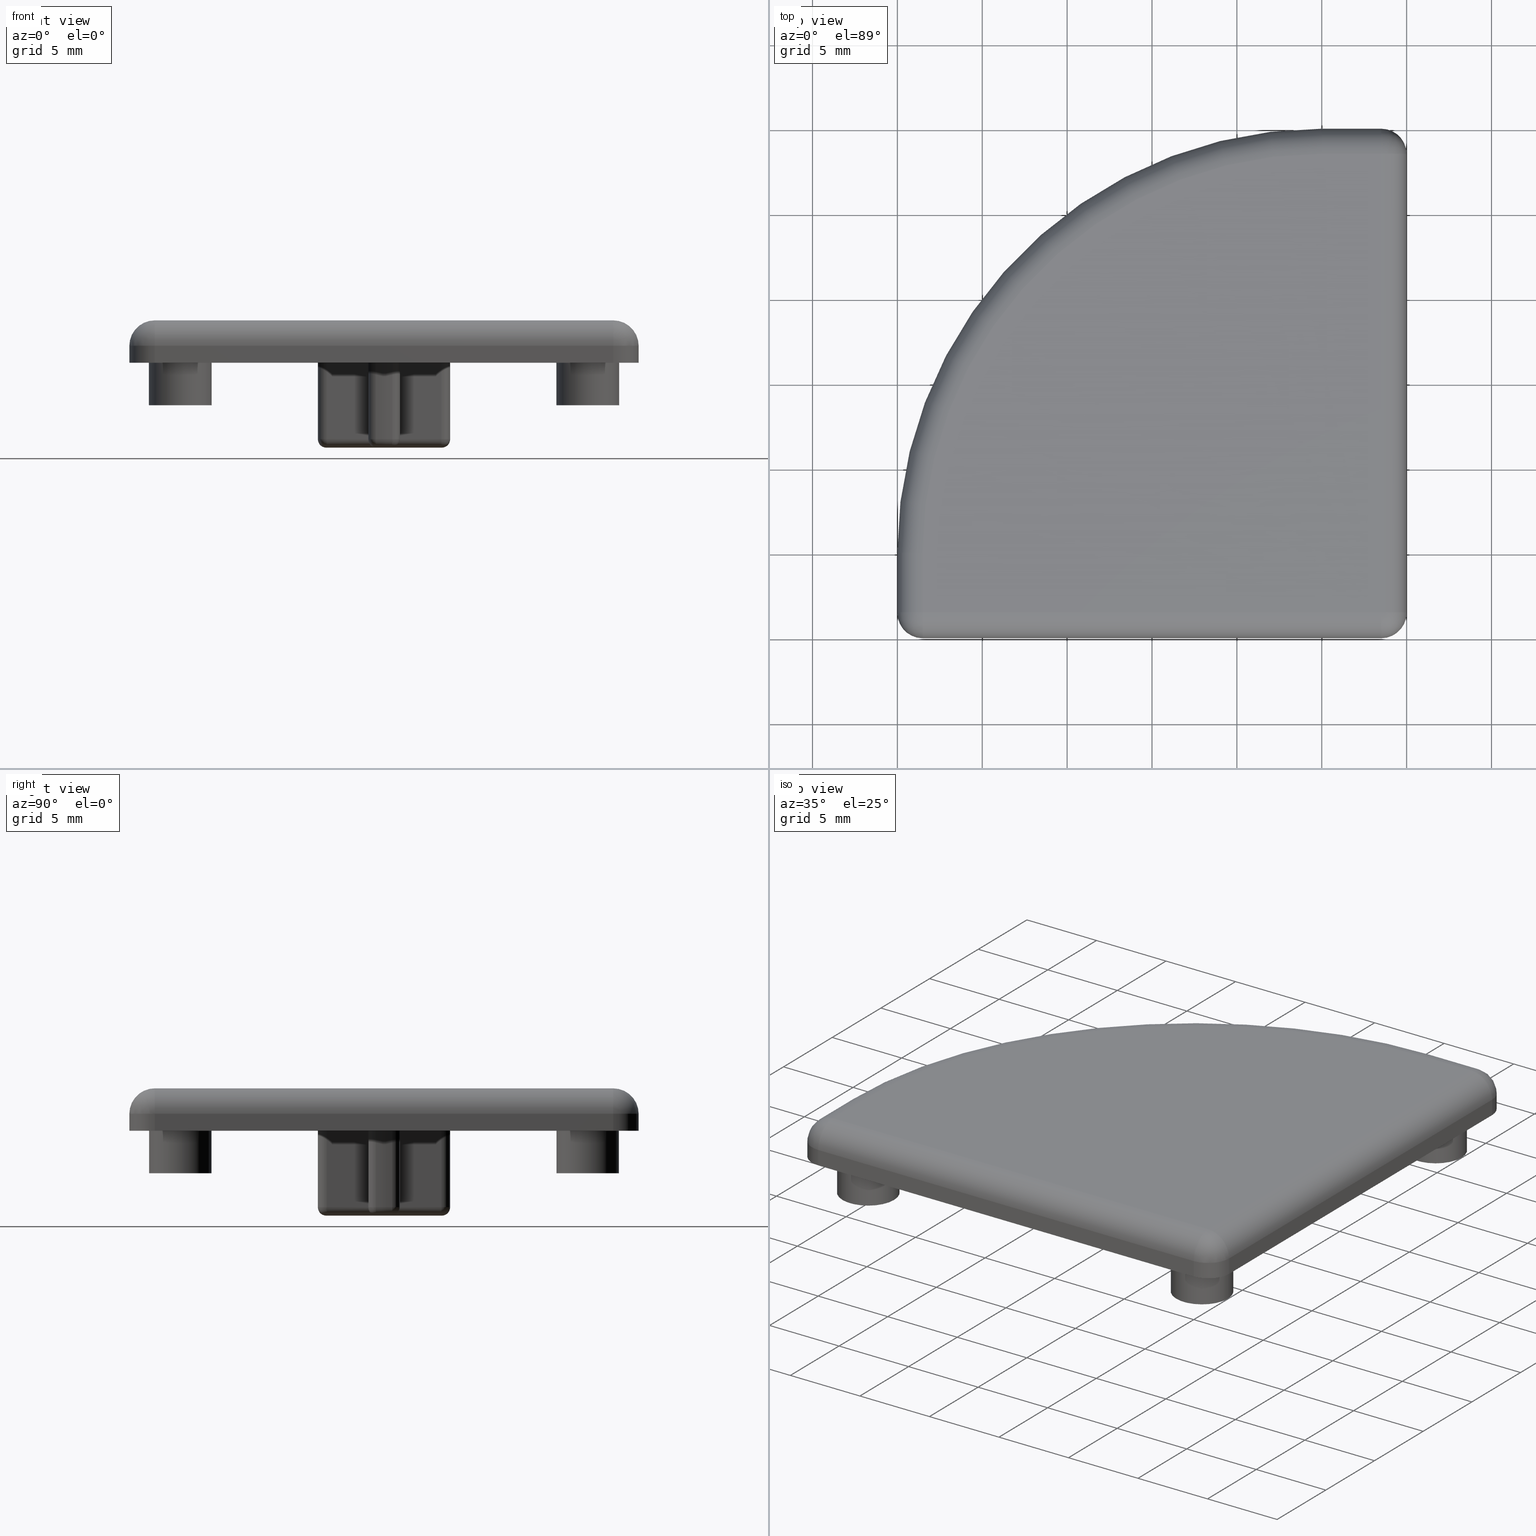
[diagram: canonical four-view strip — front | top / right | iso, engineering-drawing reading convention]
A machine part, canonical four-view strip (front | top / right | iso — engineering-drawing reading convention). The complete STEP part file that produces these views, byte-faithful:
ISO-10303-21;
HEADER;
/* Generated by software containing ST-Developer
 * from STEP Tools, Inc. (www.steptools.com) 
 */

FILE_DESCRIPTION(
/* description */ (''),
/* implementation_level */ '2;1');

FILE_NAME(
/* name */ 'C:\\Users\\fzagni\\Desktop\\DTPTR0000023.stp',
/* time_stamp */ '2019-05-15T15:37:14+02:00',
/* author */ ('fzagni'),
/* organization */ (''),
/* preprocessor_version */ 'ST-DEVELOPER v17.2',
/* originating_system */ 'Autodesk Inventor 2019',
/* authorisation */ '');

FILE_SCHEMA (('AUTOMOTIVE_DESIGN { 1 0 10303 214 3 1 1 }'));
ENDSEC;

DATA;
#10=MECHANICAL_DESIGN_GEOMETRIC_PRESENTATION_REPRESENTATION('',(#13),#1764);
#11=SHAPE_REPRESENTATION_RELATIONSHIP('SRR','None',#1771,#12);
#12=ADVANCED_BREP_SHAPE_REPRESENTATION('',(#14),#1763);
#13=STYLED_ITEM('',(#1780),#14);
#14=MANIFOLD_SOLID_BREP('Solido1',#981);
#15=FACE_BOUND('',#341,.T.);
#16=FACE_BOUND('',#342,.T.);
#17=FACE_BOUND('',#343,.T.);
#18=FACE_BOUND('',#344,.T.);
#19=PLANE('',#1073);
#20=PLANE('',#1074);
#21=PLANE('',#1077);
#22=PLANE('',#1078);
#23=PLANE('',#1081);
#24=PLANE('',#1082);
#25=PLANE('',#1083);
#26=PLANE('',#1086);
#27=PLANE('',#1087);
#28=PLANE('',#1093);
#29=PLANE('',#1097);
#30=PLANE('',#1101);
#31=PLANE('',#1129);
#32=PLANE('',#1132);
#33=PLANE('',#1133);
#34=PLANE('',#1134);
#35=PLANE('',#1135);
#36=PLANE('',#1136);
#37=TOROIDAL_SURFACE('',#1028,3.40000000000001,0.5);
#38=TOROIDAL_SURFACE('',#1058,3.40000000000001,0.5);
#39=TOROIDAL_SURFACE('',#1064,3.40000000000001,0.5);
#40=TOROIDAL_SURFACE('',#1070,3.40000000000001,0.5);
#41=TOROIDAL_SURFACE('',#1123,23.5,1.5);
#42=ELLIPSE('',#1008,0.707106781186548,0.5);
#43=ELLIPSE('',#1038,0.707106781186548,0.5);
#44=ELLIPSE('',#1062,0.707106781186548,0.5);
#45=ELLIPSE('',#1068,0.707106781186548,0.5);
#46=LINE('',#1490,#113);
#47=LINE('',#1491,#114);
#48=LINE('',#1494,#115);
#49=LINE('',#1496,#116);
#50=LINE('',#1509,#117);
#51=LINE('',#1510,#118);
#52=LINE('',#1522,#119);
#53=LINE('',#1523,#120);
#54=LINE('',#1525,#121);
#55=LINE('',#1526,#122);
#56=LINE('',#1538,#123);
#57=LINE('',#1539,#124);
#58=LINE('',#1554,#125);
#59=LINE('',#1555,#126);
#60=LINE('',#1558,#127);
#61=LINE('',#1560,#128);
#62=LINE('',#1573,#129);
#63=LINE('',#1574,#130);
#64=LINE('',#1586,#131);
#65=LINE('',#1587,#132);
#66=LINE('',#1589,#133);
#67=LINE('',#1590,#134);
#68=LINE('',#1602,#135);
#69=LINE('',#1603,#136);
#70=LINE('',#1609,#137);
#71=LINE('',#1611,#138);
#72=LINE('',#1614,#139);
#73=LINE('',#1615,#140);
#74=LINE('',#1621,#141);
#75=LINE('',#1623,#142);
#76=LINE('',#1626,#143);
#77=LINE('',#1627,#144);
#78=LINE('',#1633,#145);
#79=LINE('',#1634,#146);
#80=LINE('',#1636,#147);
#81=LINE('',#1641,#148);
#82=LINE('',#1642,#149);
#83=LINE('',#1644,#150);
#84=LINE('',#1650,#151);
#85=LINE('',#1651,#152);
#86=LINE('',#1653,#153);
#87=LINE('',#1658,#154);
#88=LINE('',#1659,#155);
#89=LINE('',#1661,#156);
#90=LINE('',#1668,#157);
#91=LINE('',#1675,#158);
#92=LINE('',#1682,#159);
#93=LINE('',#1696,#160);
#94=LINE('',#1697,#161);
#95=LINE('',#1709,#162);
#96=LINE('',#1710,#163);
#97=LINE('',#1712,#164);
#98=LINE('',#1713,#165);
#99=LINE('',#1725,#166);
#100=LINE('',#1726,#167);
#101=LINE('',#1731,#168);
#102=LINE('',#1732,#169);
#103=LINE('',#1740,#170);
#104=LINE('',#1741,#171);
#105=LINE('',#1743,#172);
#106=LINE('',#1744,#173);
#107=LINE('',#1747,#174);
#108=LINE('',#1748,#175);
#109=LINE('',#1751,#176);
#110=LINE('',#1754,#177);
#111=LINE('',#1757,#178);
#112=LINE('',#1759,#179);
#113=VECTOR('',#1151,10.);
#114=VECTOR('',#1152,10.);
#115=VECTOR('',#1155,10.);
#116=VECTOR('',#1156,10.);
#117=VECTOR('',#1171,10.);
#118=VECTOR('',#1172,10.);
#119=VECTOR('',#1185,10.);
#120=VECTOR('',#1186,10.);
#121=VECTOR('',#1189,10.);
#122=VECTOR('',#1190,10.);
#123=VECTOR('',#1203,10.);
#124=VECTOR('',#1204,10.);
#125=VECTOR('',#1223,10.);
#126=VECTOR('',#1224,10.);
#127=VECTOR('',#1227,10.);
#128=VECTOR('',#1228,10.);
#129=VECTOR('',#1243,10.);
#130=VECTOR('',#1244,10.);
#131=VECTOR('',#1257,10.);
#132=VECTOR('',#1258,10.);
#133=VECTOR('',#1261,10.);
#134=VECTOR('',#1262,10.);
#135=VECTOR('',#1275,10.);
#136=VECTOR('',#1276,10.);
#137=VECTOR('',#1285,10.);
#138=VECTOR('',#1286,10.);
#139=VECTOR('',#1291,10.);
#140=VECTOR('',#1292,10.);
#141=VECTOR('',#1301,10.);
#142=VECTOR('',#1302,10.);
#143=VECTOR('',#1307,10.);
#144=VECTOR('',#1308,10.);
#145=VECTOR('',#1317,10.);
#146=VECTOR('',#1318,10.);
#147=VECTOR('',#1321,10.);
#148=VECTOR('',#1328,10.);
#149=VECTOR('',#1329,10.);
#150=VECTOR('',#1332,10.);
#151=VECTOR('',#1341,10.);
#152=VECTOR('',#1342,10.);
#153=VECTOR('',#1345,10.);
#154=VECTOR('',#1352,10.);
#155=VECTOR('',#1353,10.);
#156=VECTOR('',#1356,10.);
#157=VECTOR('',#1365,1.85);
#158=VECTOR('',#1374,1.85);
#159=VECTOR('',#1383,1.85);
#160=VECTOR('',#1400,10.);
#161=VECTOR('',#1401,10.);
#162=VECTOR('',#1414,10.);
#163=VECTOR('',#1415,10.);
#164=VECTOR('',#1418,10.);
#165=VECTOR('',#1419,10.);
#166=VECTOR('',#1432,10.);
#167=VECTOR('',#1433,10.);
#168=VECTOR('',#1438,10.);
#169=VECTOR('',#1439,10.);
#170=VECTOR('',#1450,10.);
#171=VECTOR('',#1451,10.);
#172=VECTOR('',#1454,10.);
#173=VECTOR('',#1455,10.);
#174=VECTOR('',#1458,10.);
#175=VECTOR('',#1459,10.);
#176=VECTOR('',#1462,10.);
#177=VECTOR('',#1467,10.);
#178=VECTOR('',#1472,10.);
#179=VECTOR('',#1475,10.);
#180=CYLINDRICAL_SURFACE('',#1005,0.5);
#181=CYLINDRICAL_SURFACE('',#1007,0.5);
#182=CYLINDRICAL_SURFACE('',#1013,0.5);
#183=CYLINDRICAL_SURFACE('',#1019,0.5);
#184=CYLINDRICAL_SURFACE('',#1021,0.5);
#185=CYLINDRICAL_SURFACE('',#1026,0.5);
#186=CYLINDRICAL_SURFACE('',#1035,0.5);
#187=CYLINDRICAL_SURFACE('',#1037,0.5);
#188=CYLINDRICAL_SURFACE('',#1043,0.5);
#189=CYLINDRICAL_SURFACE('',#1049,0.5);
#190=CYLINDRICAL_SURFACE('',#1051,0.5);
#191=CYLINDRICAL_SURFACE('',#1056,0.5);
#192=CYLINDRICAL_SURFACE('',#1061,0.5);
#193=CYLINDRICAL_SURFACE('',#1063,0.5);
#194=CYLINDRICAL_SURFACE('',#1067,0.5);
#195=CYLINDRICAL_SURFACE('',#1069,0.5);
#196=CYLINDRICAL_SURFACE('',#1075,3.90000000000001);
#197=CYLINDRICAL_SURFACE('',#1079,3.90000000000001);
#198=CYLINDRICAL_SURFACE('',#1084,3.90000000000001);
#199=CYLINDRICAL_SURFACE('',#1088,3.9);
#200=CYLINDRICAL_SURFACE('',#1090,1.85);
#201=CYLINDRICAL_SURFACE('',#1094,1.85);
#202=CYLINDRICAL_SURFACE('',#1098,1.85);
#203=CYLINDRICAL_SURFACE('',#1106,1.5);
#204=CYLINDRICAL_SURFACE('',#1112,1.5);
#205=CYLINDRICAL_SURFACE('',#1114,1.5);
#206=CYLINDRICAL_SURFACE('',#1119,1.5);
#207=CYLINDRICAL_SURFACE('',#1121,1.5);
#208=CYLINDRICAL_SURFACE('',#1127,1.5);
#209=CYLINDRICAL_SURFACE('',#1128,1.5);
#210=CYLINDRICAL_SURFACE('',#1130,25.);
#211=FACE_OUTER_BOUND('',#276,.T.);
#212=FACE_OUTER_BOUND('',#277,.T.);
#213=FACE_OUTER_BOUND('',#278,.T.);
#214=FACE_OUTER_BOUND('',#279,.T.);
#215=FACE_OUTER_BOUND('',#280,.T.);
#216=FACE_OUTER_BOUND('',#281,.T.);
#217=FACE_OUTER_BOUND('',#282,.T.);
#218=FACE_OUTER_BOUND('',#283,.T.);
#219=FACE_OUTER_BOUND('',#284,.T.);
#220=FACE_OUTER_BOUND('',#285,.T.);
#221=FACE_OUTER_BOUND('',#286,.T.);
#222=FACE_OUTER_BOUND('',#287,.T.);
#223=FACE_OUTER_BOUND('',#288,.T.);
#224=FACE_OUTER_BOUND('',#289,.T.);
#225=FACE_OUTER_BOUND('',#290,.T.);
#226=FACE_OUTER_BOUND('',#291,.T.);
#227=FACE_OUTER_BOUND('',#292,.T.);
#228=FACE_OUTER_BOUND('',#293,.T.);
#229=FACE_OUTER_BOUND('',#294,.T.);
#230=FACE_OUTER_BOUND('',#295,.T.);
#231=FACE_OUTER_BOUND('',#296,.T.);
#232=FACE_OUTER_BOUND('',#297,.T.);
#233=FACE_OUTER_BOUND('',#298,.T.);
#234=FACE_OUTER_BOUND('',#299,.T.);
#235=FACE_OUTER_BOUND('',#300,.T.);
#236=FACE_OUTER_BOUND('',#301,.T.);
#237=FACE_OUTER_BOUND('',#302,.T.);
#238=FACE_OUTER_BOUND('',#303,.T.);
#239=FACE_OUTER_BOUND('',#304,.T.);
#240=FACE_OUTER_BOUND('',#305,.T.);
#241=FACE_OUTER_BOUND('',#306,.T.);
#242=FACE_OUTER_BOUND('',#307,.T.);
#243=FACE_OUTER_BOUND('',#308,.T.);
#244=FACE_OUTER_BOUND('',#309,.T.);
#245=FACE_OUTER_BOUND('',#310,.T.);
#246=FACE_OUTER_BOUND('',#311,.T.);
#247=FACE_OUTER_BOUND('',#312,.T.);
#248=FACE_OUTER_BOUND('',#313,.T.);
#249=FACE_OUTER_BOUND('',#314,.T.);
#250=FACE_OUTER_BOUND('',#315,.T.);
#251=FACE_OUTER_BOUND('',#316,.T.);
#252=FACE_OUTER_BOUND('',#317,.T.);
#253=FACE_OUTER_BOUND('',#318,.T.);
#254=FACE_OUTER_BOUND('',#319,.T.);
#255=FACE_OUTER_BOUND('',#320,.T.);
#256=FACE_OUTER_BOUND('',#321,.T.);
#257=FACE_OUTER_BOUND('',#322,.T.);
#258=FACE_OUTER_BOUND('',#323,.T.);
#259=FACE_OUTER_BOUND('',#324,.T.);
#260=FACE_OUTER_BOUND('',#325,.T.);
#261=FACE_OUTER_BOUND('',#326,.T.);
#262=FACE_OUTER_BOUND('',#327,.T.);
#263=FACE_OUTER_BOUND('',#328,.T.);
#264=FACE_OUTER_BOUND('',#329,.T.);
#265=FACE_OUTER_BOUND('',#330,.T.);
#266=FACE_OUTER_BOUND('',#331,.T.);
#267=FACE_OUTER_BOUND('',#332,.T.);
#268=FACE_OUTER_BOUND('',#333,.T.);
#269=FACE_OUTER_BOUND('',#334,.T.);
#270=FACE_OUTER_BOUND('',#335,.T.);
#271=FACE_OUTER_BOUND('',#336,.T.);
#272=FACE_OUTER_BOUND('',#337,.T.);
#273=FACE_OUTER_BOUND('',#338,.T.);
#274=FACE_OUTER_BOUND('',#339,.T.);
#275=FACE_OUTER_BOUND('',#340,.T.);
#276=EDGE_LOOP('',(#629,#630,#631));
#277=EDGE_LOOP('',(#632,#633,#634,#635));
#278=EDGE_LOOP('',(#636,#637,#638,#639));
#279=EDGE_LOOP('',(#640,#641,#642));
#280=EDGE_LOOP('',(#643,#644,#645,#646));
#281=EDGE_LOOP('',(#647,#648,#649));
#282=EDGE_LOOP('',(#650,#651,#652,#653));
#283=EDGE_LOOP('',(#654,#655,#656,#657));
#284=EDGE_LOOP('',(#658,#659,#660));
#285=EDGE_LOOP('',(#661,#662,#663,#664));
#286=EDGE_LOOP('',(#665,#666,#667,#668));
#287=EDGE_LOOP('',(#669,#670,#671));
#288=EDGE_LOOP('',(#672,#673,#674,#675));
#289=EDGE_LOOP('',(#676,#677,#678,#679));
#290=EDGE_LOOP('',(#680,#681,#682));
#291=EDGE_LOOP('',(#683,#684,#685,#686));
#292=EDGE_LOOP('',(#687,#688,#689));
#293=EDGE_LOOP('',(#690,#691,#692,#693));
#294=EDGE_LOOP('',(#694,#695,#696,#697));
#295=EDGE_LOOP('',(#698,#699,#700));
#296=EDGE_LOOP('',(#701,#702,#703,#704));
#297=EDGE_LOOP('',(#705,#706,#707,#708));
#298=EDGE_LOOP('',(#709,#710,#711,#712));
#299=EDGE_LOOP('',(#713,#714,#715,#716));
#300=EDGE_LOOP('',(#717,#718,#719,#720));
#301=EDGE_LOOP('',(#721,#722,#723,#724));
#302=EDGE_LOOP('',(#725,#726,#727,#728));
#303=EDGE_LOOP('',(#729,#730,#731,#732));
#304=EDGE_LOOP('',(#733,#734,#735,#736));
#305=EDGE_LOOP('',(#737,#738,#739,#740));
#306=EDGE_LOOP('',(#741,#742,#743,#744));
#307=EDGE_LOOP('',(#745,#746,#747,#748));
#308=EDGE_LOOP('',(#749,#750,#751,#752));
#309=EDGE_LOOP('',(#753,#754,#755,#756));
#310=EDGE_LOOP('',(#757,#758,#759,#760,#761,#762,#763,#764,#765,#766,#767,
#768));
#311=EDGE_LOOP('',(#769,#770,#771,#772));
#312=EDGE_LOOP('',(#773,#774,#775,#776));
#313=EDGE_LOOP('',(#777,#778,#779,#780));
#314=EDGE_LOOP('',(#781,#782,#783,#784));
#315=EDGE_LOOP('',(#785,#786,#787,#788));
#316=EDGE_LOOP('',(#789,#790,#791,#792));
#317=EDGE_LOOP('',(#793,#794,#795,#796));
#318=EDGE_LOOP('',(#797));
#319=EDGE_LOOP('',(#798,#799,#800,#801));
#320=EDGE_LOOP('',(#802));
#321=EDGE_LOOP('',(#803,#804,#805,#806));
#322=EDGE_LOOP('',(#807));
#323=EDGE_LOOP('',(#808,#809,#810));
#324=EDGE_LOOP('',(#811,#812,#813,#814));
#325=EDGE_LOOP('',(#815,#816,#817));
#326=EDGE_LOOP('',(#818,#819,#820,#821));
#327=EDGE_LOOP('',(#822,#823,#824,#825));
#328=EDGE_LOOP('',(#826,#827,#828));
#329=EDGE_LOOP('',(#829,#830,#831,#832));
#330=EDGE_LOOP('',(#833,#834,#835,#836));
#331=EDGE_LOOP('',(#837,#838,#839,#840));
#332=EDGE_LOOP('',(#841,#842,#843,#844));
#333=EDGE_LOOP('',(#845,#846,#847,#848));
#334=EDGE_LOOP('',(#849,#850,#851,#852));
#335=EDGE_LOOP('',(#853,#854,#855,#856));
#336=EDGE_LOOP('',(#857,#858,#859,#860));
#337=EDGE_LOOP('',(#861,#862,#863,#864,#865));
#338=EDGE_LOOP('',(#866,#867,#868,#869));
#339=EDGE_LOOP('',(#870,#871,#872,#873));
#340=EDGE_LOOP('',(#874,#875,#876,#877,#878,#879,#880,#881));
#341=EDGE_LOOP('',(#882,#883,#884,#885,#886,#887,#888,#889,#890,#891,#892,
#893,#894,#895,#896,#897,#898,#899,#900,#901));
#342=EDGE_LOOP('',(#902));
#343=EDGE_LOOP('',(#903));
#344=EDGE_LOOP('',(#904));
#345=CIRCLE('',#1002,0.5);
#346=CIRCLE('',#1003,0.499999999999999);
#347=CIRCLE('',#1004,0.5);
#348=CIRCLE('',#1006,0.5);
#349=CIRCLE('',#1010,0.5);
#350=CIRCLE('',#1011,0.5);
#351=CIRCLE('',#1012,0.5);
#352=CIRCLE('',#1014,0.5);
#353=CIRCLE('',#1016,0.5);
#354=CIRCLE('',#1017,0.5);
#355=CIRCLE('',#1018,0.5);
#356=CIRCLE('',#1020,0.5);
#357=CIRCLE('',#1023,0.5);
#358=CIRCLE('',#1024,0.499999999999999);
#359=CIRCLE('',#1025,0.5);
#360=CIRCLE('',#1027,0.5);
#361=CIRCLE('',#1029,3.40000000000001);
#362=CIRCLE('',#1030,3.90000000000001);
#363=CIRCLE('',#1032,0.5);
#364=CIRCLE('',#1033,0.5);
#365=CIRCLE('',#1034,0.5);
#366=CIRCLE('',#1036,0.5);
#367=CIRCLE('',#1040,0.5);
#368=CIRCLE('',#1041,0.500000000000001);
#369=CIRCLE('',#1042,0.5);
#370=CIRCLE('',#1044,0.5);
#371=CIRCLE('',#1046,0.5);
#372=CIRCLE('',#1047,0.5);
#373=CIRCLE('',#1048,0.5);
#374=CIRCLE('',#1050,0.5);
#375=CIRCLE('',#1053,0.5);
#376=CIRCLE('',#1054,0.5);
#377=CIRCLE('',#1055,0.5);
#378=CIRCLE('',#1057,0.5);
#379=CIRCLE('',#1059,3.40000000000001);
#380=CIRCLE('',#1060,3.90000000000001);
#381=CIRCLE('',#1065,3.40000000000001);
#382=CIRCLE('',#1066,3.90000000000001);
#383=CIRCLE('',#1071,3.40000000000001);
#384=CIRCLE('',#1072,3.9);
#385=CIRCLE('',#1076,3.90000000000001);
#386=CIRCLE('',#1080,3.90000000000001);
#387=CIRCLE('',#1085,3.90000000000001);
#388=CIRCLE('',#1089,3.9);
#389=CIRCLE('',#1091,1.85);
#390=CIRCLE('',#1092,1.85);
#391=CIRCLE('',#1095,1.85);
#392=CIRCLE('',#1096,1.85);
#393=CIRCLE('',#1099,1.85);
#394=CIRCLE('',#1100,1.85);
#395=CIRCLE('',#1103,1.5);
#396=CIRCLE('',#1104,1.5);
#397=CIRCLE('',#1105,1.5);
#398=CIRCLE('',#1107,1.5);
#399=CIRCLE('',#1109,1.5);
#400=CIRCLE('',#1110,1.5);
#401=CIRCLE('',#1111,1.5);
#402=CIRCLE('',#1113,1.5);
#403=CIRCLE('',#1116,1.5);
#404=CIRCLE('',#1117,1.5);
#405=CIRCLE('',#1118,1.5);
#406=CIRCLE('',#1120,1.5);
#407=CIRCLE('',#1122,1.5);
#408=CIRCLE('',#1124,1.5);
#409=CIRCLE('',#1125,23.5);
#410=CIRCLE('',#1126,25.);
#411=CIRCLE('',#1131,25.);
#412=VERTEX_POINT('',#1480);
#413=VERTEX_POINT('',#1481);
#414=VERTEX_POINT('',#1483);
#415=VERTEX_POINT('',#1487);
#416=VERTEX_POINT('',#1488);
#417=VERTEX_POINT('',#1493);
#418=VERTEX_POINT('',#1495);
#419=VERTEX_POINT('',#1499);
#420=VERTEX_POINT('',#1500);
#421=VERTEX_POINT('',#1502);
#422=VERTEX_POINT('',#1506);
#423=VERTEX_POINT('',#1507);
#424=VERTEX_POINT('',#1512);
#425=VERTEX_POINT('',#1513);
#426=VERTEX_POINT('',#1515);
#427=VERTEX_POINT('',#1519);
#428=VERTEX_POINT('',#1520);
#429=VERTEX_POINT('',#1528);
#430=VERTEX_POINT('',#1529);
#431=VERTEX_POINT('',#1531);
#432=VERTEX_POINT('',#1535);
#433=VERTEX_POINT('',#1536);
#434=VERTEX_POINT('',#1544);
#435=VERTEX_POINT('',#1545);
#436=VERTEX_POINT('',#1547);
#437=VERTEX_POINT('',#1551);
#438=VERTEX_POINT('',#1552);
#439=VERTEX_POINT('',#1557);
#440=VERTEX_POINT('',#1559);
#441=VERTEX_POINT('',#1563);
#442=VERTEX_POINT('',#1564);
#443=VERTEX_POINT('',#1566);
#444=VERTEX_POINT('',#1570);
#445=VERTEX_POINT('',#1571);
#446=VERTEX_POINT('',#1576);
#447=VERTEX_POINT('',#1577);
#448=VERTEX_POINT('',#1579);
#449=VERTEX_POINT('',#1583);
#450=VERTEX_POINT('',#1584);
#451=VERTEX_POINT('',#1592);
#452=VERTEX_POINT('',#1593);
#453=VERTEX_POINT('',#1595);
#454=VERTEX_POINT('',#1599);
#455=VERTEX_POINT('',#1600);
#456=VERTEX_POINT('',#1608);
#457=VERTEX_POINT('',#1610);
#458=VERTEX_POINT('',#1620);
#459=VERTEX_POINT('',#1622);
#460=VERTEX_POINT('',#1632);
#461=VERTEX_POINT('',#1640);
#462=VERTEX_POINT('',#1649);
#463=VERTEX_POINT('',#1657);
#464=VERTEX_POINT('',#1665);
#465=VERTEX_POINT('',#1667);
#466=VERTEX_POINT('',#1672);
#467=VERTEX_POINT('',#1674);
#468=VERTEX_POINT('',#1679);
#469=VERTEX_POINT('',#1681);
#470=VERTEX_POINT('',#1686);
#471=VERTEX_POINT('',#1687);
#472=VERTEX_POINT('',#1689);
#473=VERTEX_POINT('',#1693);
#474=VERTEX_POINT('',#1694);
#475=VERTEX_POINT('',#1699);
#476=VERTEX_POINT('',#1700);
#477=VERTEX_POINT('',#1702);
#478=VERTEX_POINT('',#1706);
#479=VERTEX_POINT('',#1707);
#480=VERTEX_POINT('',#1715);
#481=VERTEX_POINT('',#1716);
#482=VERTEX_POINT('',#1718);
#483=VERTEX_POINT('',#1722);
#484=VERTEX_POINT('',#1723);
#485=VERTEX_POINT('',#1728);
#486=VERTEX_POINT('',#1729);
#487=VERTEX_POINT('',#1734);
#488=VERTEX_POINT('',#1735);
#489=VERTEX_POINT('',#1746);
#490=VERTEX_POINT('',#1750);
#491=EDGE_CURVE('',#412,#413,#345,.F.);
#492=EDGE_CURVE('',#414,#412,#346,.F.);
#493=EDGE_CURVE('',#413,#414,#347,.F.);
#494=EDGE_CURVE('',#415,#416,#348,.F.);
#495=EDGE_CURVE('',#416,#414,#46,.T.);
#496=EDGE_CURVE('',#412,#415,#47,.T.);
#497=EDGE_CURVE('',#417,#412,#48,.T.);
#498=EDGE_CURVE('',#413,#418,#49,.T.);
#499=EDGE_CURVE('',#418,#417,#42,.T.);
#500=EDGE_CURVE('',#419,#420,#349,.F.);
#501=EDGE_CURVE('',#421,#419,#350,.F.);
#502=EDGE_CURVE('',#420,#421,#351,.F.);
#503=EDGE_CURVE('',#422,#423,#352,.F.);
#504=EDGE_CURVE('',#423,#421,#50,.T.);
#505=EDGE_CURVE('',#419,#422,#51,.T.);
#506=EDGE_CURVE('',#424,#425,#353,.F.);
#507=EDGE_CURVE('',#426,#424,#354,.F.);
#508=EDGE_CURVE('',#425,#426,#355,.F.);
#509=EDGE_CURVE('',#427,#428,#356,.F.);
#510=EDGE_CURVE('',#428,#426,#52,.T.);
#511=EDGE_CURVE('',#424,#427,#53,.T.);
#512=EDGE_CURVE('',#418,#425,#54,.T.);
#513=EDGE_CURVE('',#426,#417,#55,.T.);
#514=EDGE_CURVE('',#429,#430,#357,.F.);
#515=EDGE_CURVE('',#431,#429,#358,.F.);
#516=EDGE_CURVE('',#430,#431,#359,.F.);
#517=EDGE_CURVE('',#432,#433,#360,.F.);
#518=EDGE_CURVE('',#433,#431,#56,.T.);
#519=EDGE_CURVE('',#429,#432,#57,.T.);
#520=EDGE_CURVE('',#425,#430,#361,.T.);
#521=EDGE_CURVE('',#431,#424,#362,.T.);
#522=EDGE_CURVE('',#434,#435,#363,.F.);
#523=EDGE_CURVE('',#436,#434,#364,.F.);
#524=EDGE_CURVE('',#435,#436,#365,.F.);
#525=EDGE_CURVE('',#437,#438,#366,.F.);
#526=EDGE_CURVE('',#438,#436,#58,.T.);
#527=EDGE_CURVE('',#434,#437,#59,.T.);
#528=EDGE_CURVE('',#439,#429,#60,.T.);
#529=EDGE_CURVE('',#430,#440,#61,.T.);
#530=EDGE_CURVE('',#440,#439,#43,.T.);
#531=EDGE_CURVE('',#441,#442,#367,.F.);
#532=EDGE_CURVE('',#443,#441,#368,.F.);
#533=EDGE_CURVE('',#442,#443,#369,.F.);
#534=EDGE_CURVE('',#444,#445,#370,.F.);
#535=EDGE_CURVE('',#445,#443,#62,.T.);
#536=EDGE_CURVE('',#441,#444,#63,.T.);
#537=EDGE_CURVE('',#446,#447,#371,.F.);
#538=EDGE_CURVE('',#448,#446,#372,.F.);
#539=EDGE_CURVE('',#447,#448,#373,.F.);
#540=EDGE_CURVE('',#449,#450,#374,.F.);
#541=EDGE_CURVE('',#450,#448,#64,.T.);
#542=EDGE_CURVE('',#446,#449,#65,.T.);
#543=EDGE_CURVE('',#440,#447,#66,.T.);
#544=EDGE_CURVE('',#448,#439,#67,.T.);
#545=EDGE_CURVE('',#451,#452,#375,.F.);
#546=EDGE_CURVE('',#453,#451,#376,.F.);
#547=EDGE_CURVE('',#452,#453,#377,.F.);
#548=EDGE_CURVE('',#454,#455,#378,.F.);
#549=EDGE_CURVE('',#455,#453,#68,.T.);
#550=EDGE_CURVE('',#451,#454,#69,.T.);
#551=EDGE_CURVE('',#447,#452,#379,.T.);
#552=EDGE_CURVE('',#453,#446,#380,.T.);
#553=EDGE_CURVE('',#456,#451,#70,.T.);
#554=EDGE_CURVE('',#452,#457,#71,.T.);
#555=EDGE_CURVE('',#457,#456,#44,.T.);
#556=EDGE_CURVE('',#457,#442,#72,.T.);
#557=EDGE_CURVE('',#443,#456,#73,.T.);
#558=EDGE_CURVE('',#442,#435,#381,.T.);
#559=EDGE_CURVE('',#436,#441,#382,.T.);
#560=EDGE_CURVE('',#458,#434,#74,.T.);
#561=EDGE_CURVE('',#435,#459,#75,.T.);
#562=EDGE_CURVE('',#459,#458,#45,.T.);
#563=EDGE_CURVE('',#459,#420,#76,.T.);
#564=EDGE_CURVE('',#421,#458,#77,.T.);
#565=EDGE_CURVE('',#420,#413,#383,.T.);
#566=EDGE_CURVE('',#414,#419,#384,.T.);
#567=EDGE_CURVE('',#460,#417,#78,.T.);
#568=EDGE_CURVE('',#415,#460,#79,.T.);
#569=EDGE_CURVE('',#460,#428,#80,.T.);
#570=EDGE_CURVE('',#427,#433,#385,.T.);
#571=EDGE_CURVE('',#461,#439,#81,.T.);
#572=EDGE_CURVE('',#432,#461,#82,.T.);
#573=EDGE_CURVE('',#461,#450,#83,.T.);
#574=EDGE_CURVE('',#449,#455,#386,.T.);
#575=EDGE_CURVE('',#462,#456,#84,.T.);
#576=EDGE_CURVE('',#454,#462,#85,.T.);
#577=EDGE_CURVE('',#462,#445,#86,.T.);
#578=EDGE_CURVE('',#444,#438,#387,.T.);
#579=EDGE_CURVE('',#463,#458,#87,.T.);
#580=EDGE_CURVE('',#437,#463,#88,.T.);
#581=EDGE_CURVE('',#463,#423,#89,.T.);
#582=EDGE_CURVE('',#422,#416,#388,.T.);
#583=EDGE_CURVE('',#464,#464,#389,.T.);
#584=EDGE_CURVE('',#464,#465,#90,.T.);
#585=EDGE_CURVE('',#465,#465,#390,.T.);
#586=EDGE_CURVE('',#466,#466,#391,.T.);
#587=EDGE_CURVE('',#466,#467,#91,.T.);
#588=EDGE_CURVE('',#467,#467,#392,.T.);
#589=EDGE_CURVE('',#468,#468,#393,.T.);
#590=EDGE_CURVE('',#468,#469,#92,.T.);
#591=EDGE_CURVE('',#469,#469,#394,.T.);
#592=EDGE_CURVE('',#470,#471,#395,.F.);
#593=EDGE_CURVE('',#472,#470,#396,.F.);
#594=EDGE_CURVE('',#471,#472,#397,.F.);
#595=EDGE_CURVE('',#473,#474,#398,.T.);
#596=EDGE_CURVE('',#474,#472,#93,.T.);
#597=EDGE_CURVE('',#470,#473,#94,.T.);
#598=EDGE_CURVE('',#475,#476,#399,.F.);
#599=EDGE_CURVE('',#477,#475,#400,.F.);
#600=EDGE_CURVE('',#476,#477,#401,.F.);
#601=EDGE_CURVE('',#478,#479,#402,.T.);
#602=EDGE_CURVE('',#479,#477,#95,.T.);
#603=EDGE_CURVE('',#475,#478,#96,.T.);
#604=EDGE_CURVE('',#471,#476,#97,.T.);
#605=EDGE_CURVE('',#477,#470,#98,.T.);
#606=EDGE_CURVE('',#480,#481,#403,.F.);
#607=EDGE_CURVE('',#482,#480,#404,.F.);
#608=EDGE_CURVE('',#481,#482,#405,.F.);
#609=EDGE_CURVE('',#483,#484,#406,.T.);
#610=EDGE_CURVE('',#484,#482,#99,.T.);
#611=EDGE_CURVE('',#480,#483,#100,.T.);
#612=EDGE_CURVE('',#485,#486,#407,.T.);
#613=EDGE_CURVE('',#486,#481,#101,.T.);
#614=EDGE_CURVE('',#482,#485,#102,.T.);
#615=EDGE_CURVE('',#487,#488,#408,.T.);
#616=EDGE_CURVE('',#488,#486,#409,.T.);
#617=EDGE_CURVE('',#485,#487,#410,.T.);
#618=EDGE_CURVE('',#476,#488,#103,.T.);
#619=EDGE_CURVE('',#487,#475,#104,.T.);
#620=EDGE_CURVE('',#481,#471,#105,.T.);
#621=EDGE_CURVE('',#472,#480,#106,.T.);
#622=EDGE_CURVE('',#489,#487,#107,.T.);
#623=EDGE_CURVE('',#478,#489,#108,.T.);
#624=EDGE_CURVE('',#490,#485,#109,.T.);
#625=EDGE_CURVE('',#489,#490,#411,.T.);
#626=EDGE_CURVE('',#490,#484,#110,.T.);
#627=EDGE_CURVE('',#473,#479,#111,.T.);
#628=EDGE_CURVE('',#483,#474,#112,.T.);
#629=ORIENTED_EDGE('',*,*,#491,.F.);
#630=ORIENTED_EDGE('',*,*,#492,.F.);
#631=ORIENTED_EDGE('',*,*,#493,.F.);
#632=ORIENTED_EDGE('',*,*,#494,.T.);
#633=ORIENTED_EDGE('',*,*,#495,.T.);
#634=ORIENTED_EDGE('',*,*,#492,.T.);
#635=ORIENTED_EDGE('',*,*,#496,.T.);
#636=ORIENTED_EDGE('',*,*,#497,.T.);
#637=ORIENTED_EDGE('',*,*,#491,.T.);
#638=ORIENTED_EDGE('',*,*,#498,.T.);
#639=ORIENTED_EDGE('',*,*,#499,.T.);
#640=ORIENTED_EDGE('',*,*,#500,.F.);
#641=ORIENTED_EDGE('',*,*,#501,.F.);
#642=ORIENTED_EDGE('',*,*,#502,.F.);
#643=ORIENTED_EDGE('',*,*,#503,.T.);
#644=ORIENTED_EDGE('',*,*,#504,.T.);
#645=ORIENTED_EDGE('',*,*,#501,.T.);
#646=ORIENTED_EDGE('',*,*,#505,.T.);
#647=ORIENTED_EDGE('',*,*,#506,.F.);
#648=ORIENTED_EDGE('',*,*,#507,.F.);
#649=ORIENTED_EDGE('',*,*,#508,.F.);
#650=ORIENTED_EDGE('',*,*,#509,.T.);
#651=ORIENTED_EDGE('',*,*,#510,.T.);
#652=ORIENTED_EDGE('',*,*,#507,.T.);
#653=ORIENTED_EDGE('',*,*,#511,.T.);
#654=ORIENTED_EDGE('',*,*,#512,.T.);
#655=ORIENTED_EDGE('',*,*,#508,.T.);
#656=ORIENTED_EDGE('',*,*,#513,.T.);
#657=ORIENTED_EDGE('',*,*,#499,.F.);
#658=ORIENTED_EDGE('',*,*,#514,.F.);
#659=ORIENTED_EDGE('',*,*,#515,.F.);
#660=ORIENTED_EDGE('',*,*,#516,.F.);
#661=ORIENTED_EDGE('',*,*,#517,.T.);
#662=ORIENTED_EDGE('',*,*,#518,.T.);
#663=ORIENTED_EDGE('',*,*,#515,.T.);
#664=ORIENTED_EDGE('',*,*,#519,.T.);
#665=ORIENTED_EDGE('',*,*,#506,.T.);
#666=ORIENTED_EDGE('',*,*,#520,.T.);
#667=ORIENTED_EDGE('',*,*,#516,.T.);
#668=ORIENTED_EDGE('',*,*,#521,.T.);
#669=ORIENTED_EDGE('',*,*,#522,.F.);
#670=ORIENTED_EDGE('',*,*,#523,.F.);
#671=ORIENTED_EDGE('',*,*,#524,.F.);
#672=ORIENTED_EDGE('',*,*,#525,.T.);
#673=ORIENTED_EDGE('',*,*,#526,.T.);
#674=ORIENTED_EDGE('',*,*,#523,.T.);
#675=ORIENTED_EDGE('',*,*,#527,.T.);
#676=ORIENTED_EDGE('',*,*,#528,.T.);
#677=ORIENTED_EDGE('',*,*,#514,.T.);
#678=ORIENTED_EDGE('',*,*,#529,.T.);
#679=ORIENTED_EDGE('',*,*,#530,.T.);
#680=ORIENTED_EDGE('',*,*,#531,.F.);
#681=ORIENTED_EDGE('',*,*,#532,.F.);
#682=ORIENTED_EDGE('',*,*,#533,.F.);
#683=ORIENTED_EDGE('',*,*,#534,.T.);
#684=ORIENTED_EDGE('',*,*,#535,.T.);
#685=ORIENTED_EDGE('',*,*,#532,.T.);
#686=ORIENTED_EDGE('',*,*,#536,.T.);
#687=ORIENTED_EDGE('',*,*,#537,.F.);
#688=ORIENTED_EDGE('',*,*,#538,.F.);
#689=ORIENTED_EDGE('',*,*,#539,.F.);
#690=ORIENTED_EDGE('',*,*,#540,.T.);
#691=ORIENTED_EDGE('',*,*,#541,.T.);
#692=ORIENTED_EDGE('',*,*,#538,.T.);
#693=ORIENTED_EDGE('',*,*,#542,.T.);
#694=ORIENTED_EDGE('',*,*,#543,.T.);
#695=ORIENTED_EDGE('',*,*,#539,.T.);
#696=ORIENTED_EDGE('',*,*,#544,.T.);
#697=ORIENTED_EDGE('',*,*,#530,.F.);
#698=ORIENTED_EDGE('',*,*,#545,.F.);
#699=ORIENTED_EDGE('',*,*,#546,.F.);
#700=ORIENTED_EDGE('',*,*,#547,.F.);
#701=ORIENTED_EDGE('',*,*,#548,.T.);
#702=ORIENTED_EDGE('',*,*,#549,.T.);
#703=ORIENTED_EDGE('',*,*,#546,.T.);
#704=ORIENTED_EDGE('',*,*,#550,.T.);
#705=ORIENTED_EDGE('',*,*,#537,.T.);
#706=ORIENTED_EDGE('',*,*,#551,.T.);
#707=ORIENTED_EDGE('',*,*,#547,.T.);
#708=ORIENTED_EDGE('',*,*,#552,.T.);
#709=ORIENTED_EDGE('',*,*,#553,.T.);
#710=ORIENTED_EDGE('',*,*,#545,.T.);
#711=ORIENTED_EDGE('',*,*,#554,.T.);
#712=ORIENTED_EDGE('',*,*,#555,.T.);
#713=ORIENTED_EDGE('',*,*,#556,.T.);
#714=ORIENTED_EDGE('',*,*,#533,.T.);
#715=ORIENTED_EDGE('',*,*,#557,.T.);
#716=ORIENTED_EDGE('',*,*,#555,.F.);
#717=ORIENTED_EDGE('',*,*,#531,.T.);
#718=ORIENTED_EDGE('',*,*,#558,.T.);
#719=ORIENTED_EDGE('',*,*,#524,.T.);
#720=ORIENTED_EDGE('',*,*,#559,.T.);
#721=ORIENTED_EDGE('',*,*,#560,.T.);
#722=ORIENTED_EDGE('',*,*,#522,.T.);
#723=ORIENTED_EDGE('',*,*,#561,.T.);
#724=ORIENTED_EDGE('',*,*,#562,.T.);
#725=ORIENTED_EDGE('',*,*,#563,.T.);
#726=ORIENTED_EDGE('',*,*,#502,.T.);
#727=ORIENTED_EDGE('',*,*,#564,.T.);
#728=ORIENTED_EDGE('',*,*,#562,.F.);
#729=ORIENTED_EDGE('',*,*,#500,.T.);
#730=ORIENTED_EDGE('',*,*,#565,.T.);
#731=ORIENTED_EDGE('',*,*,#493,.T.);
#732=ORIENTED_EDGE('',*,*,#566,.T.);
#733=ORIENTED_EDGE('',*,*,#496,.F.);
#734=ORIENTED_EDGE('',*,*,#497,.F.);
#735=ORIENTED_EDGE('',*,*,#567,.F.);
#736=ORIENTED_EDGE('',*,*,#568,.F.);
#737=ORIENTED_EDGE('',*,*,#513,.F.);
#738=ORIENTED_EDGE('',*,*,#510,.F.);
#739=ORIENTED_EDGE('',*,*,#569,.F.);
#740=ORIENTED_EDGE('',*,*,#567,.T.);
#741=ORIENTED_EDGE('',*,*,#511,.F.);
#742=ORIENTED_EDGE('',*,*,#521,.F.);
#743=ORIENTED_EDGE('',*,*,#518,.F.);
#744=ORIENTED_EDGE('',*,*,#570,.F.);
#745=ORIENTED_EDGE('',*,*,#519,.F.);
#746=ORIENTED_EDGE('',*,*,#528,.F.);
#747=ORIENTED_EDGE('',*,*,#571,.F.);
#748=ORIENTED_EDGE('',*,*,#572,.F.);
#749=ORIENTED_EDGE('',*,*,#544,.F.);
#750=ORIENTED_EDGE('',*,*,#541,.F.);
#751=ORIENTED_EDGE('',*,*,#573,.F.);
#752=ORIENTED_EDGE('',*,*,#571,.T.);
#753=ORIENTED_EDGE('',*,*,#542,.F.);
#754=ORIENTED_EDGE('',*,*,#552,.F.);
#755=ORIENTED_EDGE('',*,*,#549,.F.);
#756=ORIENTED_EDGE('',*,*,#574,.F.);
#757=ORIENTED_EDGE('',*,*,#498,.F.);
#758=ORIENTED_EDGE('',*,*,#565,.F.);
#759=ORIENTED_EDGE('',*,*,#563,.F.);
#760=ORIENTED_EDGE('',*,*,#561,.F.);
#761=ORIENTED_EDGE('',*,*,#558,.F.);
#762=ORIENTED_EDGE('',*,*,#556,.F.);
#763=ORIENTED_EDGE('',*,*,#554,.F.);
#764=ORIENTED_EDGE('',*,*,#551,.F.);
#765=ORIENTED_EDGE('',*,*,#543,.F.);
#766=ORIENTED_EDGE('',*,*,#529,.F.);
#767=ORIENTED_EDGE('',*,*,#520,.F.);
#768=ORIENTED_EDGE('',*,*,#512,.F.);
#769=ORIENTED_EDGE('',*,*,#553,.F.);
#770=ORIENTED_EDGE('',*,*,#575,.F.);
#771=ORIENTED_EDGE('',*,*,#576,.F.);
#772=ORIENTED_EDGE('',*,*,#550,.F.);
#773=ORIENTED_EDGE('',*,*,#535,.F.);
#774=ORIENTED_EDGE('',*,*,#577,.F.);
#775=ORIENTED_EDGE('',*,*,#575,.T.);
#776=ORIENTED_EDGE('',*,*,#557,.F.);
#777=ORIENTED_EDGE('',*,*,#526,.F.);
#778=ORIENTED_EDGE('',*,*,#578,.F.);
#779=ORIENTED_EDGE('',*,*,#536,.F.);
#780=ORIENTED_EDGE('',*,*,#559,.F.);
#781=ORIENTED_EDGE('',*,*,#560,.F.);
#782=ORIENTED_EDGE('',*,*,#579,.F.);
#783=ORIENTED_EDGE('',*,*,#580,.F.);
#784=ORIENTED_EDGE('',*,*,#527,.F.);
#785=ORIENTED_EDGE('',*,*,#504,.F.);
#786=ORIENTED_EDGE('',*,*,#581,.F.);
#787=ORIENTED_EDGE('',*,*,#579,.T.);
#788=ORIENTED_EDGE('',*,*,#564,.F.);
#789=ORIENTED_EDGE('',*,*,#495,.F.);
#790=ORIENTED_EDGE('',*,*,#582,.F.);
#791=ORIENTED_EDGE('',*,*,#505,.F.);
#792=ORIENTED_EDGE('',*,*,#566,.F.);
#793=ORIENTED_EDGE('',*,*,#583,.F.);
#794=ORIENTED_EDGE('',*,*,#584,.T.);
#795=ORIENTED_EDGE('',*,*,#585,.F.);
#796=ORIENTED_EDGE('',*,*,#584,.F.);
#797=ORIENTED_EDGE('',*,*,#583,.T.);
#798=ORIENTED_EDGE('',*,*,#586,.F.);
#799=ORIENTED_EDGE('',*,*,#587,.T.);
#800=ORIENTED_EDGE('',*,*,#588,.F.);
#801=ORIENTED_EDGE('',*,*,#587,.F.);
#802=ORIENTED_EDGE('',*,*,#586,.T.);
#803=ORIENTED_EDGE('',*,*,#589,.F.);
#804=ORIENTED_EDGE('',*,*,#590,.T.);
#805=ORIENTED_EDGE('',*,*,#591,.F.);
#806=ORIENTED_EDGE('',*,*,#590,.F.);
#807=ORIENTED_EDGE('',*,*,#589,.T.);
#808=ORIENTED_EDGE('',*,*,#592,.F.);
#809=ORIENTED_EDGE('',*,*,#593,.F.);
#810=ORIENTED_EDGE('',*,*,#594,.F.);
#811=ORIENTED_EDGE('',*,*,#595,.T.);
#812=ORIENTED_EDGE('',*,*,#596,.T.);
#813=ORIENTED_EDGE('',*,*,#593,.T.);
#814=ORIENTED_EDGE('',*,*,#597,.T.);
#815=ORIENTED_EDGE('',*,*,#598,.F.);
#816=ORIENTED_EDGE('',*,*,#599,.F.);
#817=ORIENTED_EDGE('',*,*,#600,.F.);
#818=ORIENTED_EDGE('',*,*,#601,.T.);
#819=ORIENTED_EDGE('',*,*,#602,.T.);
#820=ORIENTED_EDGE('',*,*,#599,.T.);
#821=ORIENTED_EDGE('',*,*,#603,.T.);
#822=ORIENTED_EDGE('',*,*,#592,.T.);
#823=ORIENTED_EDGE('',*,*,#604,.T.);
#824=ORIENTED_EDGE('',*,*,#600,.T.);
#825=ORIENTED_EDGE('',*,*,#605,.T.);
#826=ORIENTED_EDGE('',*,*,#606,.F.);
#827=ORIENTED_EDGE('',*,*,#607,.F.);
#828=ORIENTED_EDGE('',*,*,#608,.F.);
#829=ORIENTED_EDGE('',*,*,#609,.T.);
#830=ORIENTED_EDGE('',*,*,#610,.T.);
#831=ORIENTED_EDGE('',*,*,#607,.T.);
#832=ORIENTED_EDGE('',*,*,#611,.T.);
#833=ORIENTED_EDGE('',*,*,#612,.T.);
#834=ORIENTED_EDGE('',*,*,#613,.T.);
#835=ORIENTED_EDGE('',*,*,#608,.T.);
#836=ORIENTED_EDGE('',*,*,#614,.T.);
#837=ORIENTED_EDGE('',*,*,#615,.T.);
#838=ORIENTED_EDGE('',*,*,#616,.T.);
#839=ORIENTED_EDGE('',*,*,#612,.F.);
#840=ORIENTED_EDGE('',*,*,#617,.T.);
#841=ORIENTED_EDGE('',*,*,#598,.T.);
#842=ORIENTED_EDGE('',*,*,#618,.T.);
#843=ORIENTED_EDGE('',*,*,#615,.F.);
#844=ORIENTED_EDGE('',*,*,#619,.T.);
#845=ORIENTED_EDGE('',*,*,#606,.T.);
#846=ORIENTED_EDGE('',*,*,#620,.T.);
#847=ORIENTED_EDGE('',*,*,#594,.T.);
#848=ORIENTED_EDGE('',*,*,#621,.T.);
#849=ORIENTED_EDGE('',*,*,#603,.F.);
#850=ORIENTED_EDGE('',*,*,#619,.F.);
#851=ORIENTED_EDGE('',*,*,#622,.F.);
#852=ORIENTED_EDGE('',*,*,#623,.F.);
#853=ORIENTED_EDGE('',*,*,#617,.F.);
#854=ORIENTED_EDGE('',*,*,#624,.F.);
#855=ORIENTED_EDGE('',*,*,#625,.F.);
#856=ORIENTED_EDGE('',*,*,#622,.T.);
#857=ORIENTED_EDGE('',*,*,#614,.F.);
#858=ORIENTED_EDGE('',*,*,#610,.F.);
#859=ORIENTED_EDGE('',*,*,#626,.F.);
#860=ORIENTED_EDGE('',*,*,#624,.T.);
#861=ORIENTED_EDGE('',*,*,#613,.F.);
#862=ORIENTED_EDGE('',*,*,#616,.F.);
#863=ORIENTED_EDGE('',*,*,#618,.F.);
#864=ORIENTED_EDGE('',*,*,#604,.F.);
#865=ORIENTED_EDGE('',*,*,#620,.F.);
#866=ORIENTED_EDGE('',*,*,#602,.F.);
#867=ORIENTED_EDGE('',*,*,#627,.F.);
#868=ORIENTED_EDGE('',*,*,#597,.F.);
#869=ORIENTED_EDGE('',*,*,#605,.F.);
#870=ORIENTED_EDGE('',*,*,#596,.F.);
#871=ORIENTED_EDGE('',*,*,#628,.F.);
#872=ORIENTED_EDGE('',*,*,#611,.F.);
#873=ORIENTED_EDGE('',*,*,#621,.F.);
#874=ORIENTED_EDGE('',*,*,#601,.F.);
#875=ORIENTED_EDGE('',*,*,#623,.T.);
#876=ORIENTED_EDGE('',*,*,#625,.T.);
#877=ORIENTED_EDGE('',*,*,#626,.T.);
#878=ORIENTED_EDGE('',*,*,#609,.F.);
#879=ORIENTED_EDGE('',*,*,#628,.T.);
#880=ORIENTED_EDGE('',*,*,#595,.F.);
#881=ORIENTED_EDGE('',*,*,#627,.T.);
#882=ORIENTED_EDGE('',*,*,#573,.T.);
#883=ORIENTED_EDGE('',*,*,#540,.F.);
#884=ORIENTED_EDGE('',*,*,#574,.T.);
#885=ORIENTED_EDGE('',*,*,#548,.F.);
#886=ORIENTED_EDGE('',*,*,#576,.T.);
#887=ORIENTED_EDGE('',*,*,#577,.T.);
#888=ORIENTED_EDGE('',*,*,#534,.F.);
#889=ORIENTED_EDGE('',*,*,#578,.T.);
#890=ORIENTED_EDGE('',*,*,#525,.F.);
#891=ORIENTED_EDGE('',*,*,#580,.T.);
#892=ORIENTED_EDGE('',*,*,#581,.T.);
#893=ORIENTED_EDGE('',*,*,#503,.F.);
#894=ORIENTED_EDGE('',*,*,#582,.T.);
#895=ORIENTED_EDGE('',*,*,#494,.F.);
#896=ORIENTED_EDGE('',*,*,#568,.T.);
#897=ORIENTED_EDGE('',*,*,#569,.T.);
#898=ORIENTED_EDGE('',*,*,#509,.F.);
#899=ORIENTED_EDGE('',*,*,#570,.T.);
#900=ORIENTED_EDGE('',*,*,#517,.F.);
#901=ORIENTED_EDGE('',*,*,#572,.T.);
#902=ORIENTED_EDGE('',*,*,#585,.T.);
#903=ORIENTED_EDGE('',*,*,#588,.T.);
#904=ORIENTED_EDGE('',*,*,#591,.T.);
#905=SPHERICAL_SURFACE('',#1001,0.499999999999999);
#906=SPHERICAL_SURFACE('',#1009,0.5);
#907=SPHERICAL_SURFACE('',#1015,0.5);
#908=SPHERICAL_SURFACE('',#1022,0.499999999999999);
#909=SPHERICAL_SURFACE('',#1031,0.5);
#910=SPHERICAL_SURFACE('',#1039,0.500000000000001);
#911=SPHERICAL_SURFACE('',#1045,0.5);
#912=SPHERICAL_SURFACE('',#1052,0.5);
#913=SPHERICAL_SURFACE('',#1102,1.5);
#914=SPHERICAL_SURFACE('',#1108,1.5);
#915=SPHERICAL_SURFACE('',#1115,1.5);
#916=ADVANCED_FACE('',(#211),#905,.T.);
#917=ADVANCED_FACE('',(#212),#180,.T.);
#918=ADVANCED_FACE('',(#213),#181,.T.);
#919=ADVANCED_FACE('',(#214),#906,.T.);
#920=ADVANCED_FACE('',(#215),#182,.T.);
#921=ADVANCED_FACE('',(#216),#907,.T.);
#922=ADVANCED_FACE('',(#217),#183,.T.);
#923=ADVANCED_FACE('',(#218),#184,.T.);
#924=ADVANCED_FACE('',(#219),#908,.T.);
#925=ADVANCED_FACE('',(#220),#185,.T.);
#926=ADVANCED_FACE('',(#221),#37,.T.);
#927=ADVANCED_FACE('',(#222),#909,.T.);
#928=ADVANCED_FACE('',(#223),#186,.T.);
#929=ADVANCED_FACE('',(#224),#187,.T.);
#930=ADVANCED_FACE('',(#225),#910,.T.);
#931=ADVANCED_FACE('',(#226),#188,.T.);
#932=ADVANCED_FACE('',(#227),#911,.T.);
#933=ADVANCED_FACE('',(#228),#189,.T.);
#934=ADVANCED_FACE('',(#229),#190,.T.);
#935=ADVANCED_FACE('',(#230),#912,.T.);
#936=ADVANCED_FACE('',(#231),#191,.T.);
#937=ADVANCED_FACE('',(#232),#38,.T.);
#938=ADVANCED_FACE('',(#233),#192,.T.);
#939=ADVANCED_FACE('',(#234),#193,.T.);
#940=ADVANCED_FACE('',(#235),#39,.T.);
#941=ADVANCED_FACE('',(#236),#194,.T.);
#942=ADVANCED_FACE('',(#237),#195,.T.);
#943=ADVANCED_FACE('',(#238),#40,.T.);
#944=ADVANCED_FACE('',(#239),#19,.T.);
#945=ADVANCED_FACE('',(#240),#20,.T.);
#946=ADVANCED_FACE('',(#241),#196,.T.);
#947=ADVANCED_FACE('',(#242),#21,.T.);
#948=ADVANCED_FACE('',(#243),#22,.T.);
#949=ADVANCED_FACE('',(#244),#197,.T.);
#950=ADVANCED_FACE('',(#245),#23,.F.);
#951=ADVANCED_FACE('',(#246),#24,.T.);
#952=ADVANCED_FACE('',(#247),#25,.T.);
#953=ADVANCED_FACE('',(#248),#198,.T.);
#954=ADVANCED_FACE('',(#249),#26,.T.);
#955=ADVANCED_FACE('',(#250),#27,.T.);
#956=ADVANCED_FACE('',(#251),#199,.T.);
#957=ADVANCED_FACE('',(#252),#200,.T.);
#958=ADVANCED_FACE('',(#253),#28,.F.);
#959=ADVANCED_FACE('',(#254),#201,.T.);
#960=ADVANCED_FACE('',(#255),#29,.F.);
#961=ADVANCED_FACE('',(#256),#202,.T.);
#962=ADVANCED_FACE('',(#257),#30,.F.);
#963=ADVANCED_FACE('',(#258),#913,.T.);
#964=ADVANCED_FACE('',(#259),#203,.T.);
#965=ADVANCED_FACE('',(#260),#914,.T.);
#966=ADVANCED_FACE('',(#261),#204,.T.);
#967=ADVANCED_FACE('',(#262),#205,.T.);
#968=ADVANCED_FACE('',(#263),#915,.T.);
#969=ADVANCED_FACE('',(#264),#206,.T.);
#970=ADVANCED_FACE('',(#265),#207,.T.);
#971=ADVANCED_FACE('',(#266),#41,.T.);
#972=ADVANCED_FACE('',(#267),#208,.T.);
#973=ADVANCED_FACE('',(#268),#209,.T.);
#974=ADVANCED_FACE('',(#269),#31,.T.);
#975=ADVANCED_FACE('',(#270),#210,.T.);
#976=ADVANCED_FACE('',(#271),#32,.T.);
#977=ADVANCED_FACE('',(#272),#33,.T.);
#978=ADVANCED_FACE('',(#273),#34,.T.);
#979=ADVANCED_FACE('',(#274),#35,.T.);
#980=ADVANCED_FACE('',(#275,#15,#16,#17,#18),#36,.F.);
#981=CLOSED_SHELL('',(#916,#917,#918,#919,#920,#921,#922,#923,#924,#925,
#926,#927,#928,#929,#930,#931,#932,#933,#934,#935,#936,#937,#938,#939,#940,
#941,#942,#943,#944,#945,#946,#947,#948,#949,#950,#951,#952,#953,#954,#955,
#956,#957,#958,#959,#960,#961,#962,#963,#964,#965,#966,#967,#968,#969,#970,
#971,#972,#973,#974,#975,#976,#977,#978,#979,#980));
#982=DERIVED_UNIT_ELEMENT(#984,1.);
#983=DERIVED_UNIT_ELEMENT(#1766,3.);
#984=(
MASS_UNIT()
NAMED_UNIT(*)
SI_UNIT($,.GRAM.)
);
#985=DERIVED_UNIT((#982,#983));
#986=MEASURE_REPRESENTATION_ITEM('density measure',
POSITIVE_RATIO_MEASURE(1.13),#985);
#987=PROPERTY_DEFINITION_REPRESENTATION(#992,#989);
#988=PROPERTY_DEFINITION_REPRESENTATION(#993,#990);
#989=REPRESENTATION('material name',(#991),#1763);
#990=REPRESENTATION('density',(#986),#1763);
#991=DESCRIPTIVE_REPRESENTATION_ITEM('NYLON','NYLON');
#992=PROPERTY_DEFINITION('material property','material name',#1773);
#993=PROPERTY_DEFINITION('material property','density of part',#1773);
#994=DATE_TIME_ROLE('creation_date');
#995=APPLIED_DATE_AND_TIME_ASSIGNMENT(#996,#994,(#1773));
#996=DATE_AND_TIME(#997,#998);
#997=CALENDAR_DATE(2019,15,5);
#998=LOCAL_TIME(13,23,2.,#999);
#999=COORDINATED_UNIVERSAL_TIME_OFFSET(0,0,.BEHIND.);
#1000=AXIS2_PLACEMENT_3D('placement',#1478,#1137,#1138);
#1001=AXIS2_PLACEMENT_3D('',#1479,#1139,#1140);
#1002=AXIS2_PLACEMENT_3D('',#1482,#1141,#1142);
#1003=AXIS2_PLACEMENT_3D('',#1484,#1143,#1144);
#1004=AXIS2_PLACEMENT_3D('',#1485,#1145,#1146);
#1005=AXIS2_PLACEMENT_3D('',#1486,#1147,#1148);
#1006=AXIS2_PLACEMENT_3D('',#1489,#1149,#1150);
#1007=AXIS2_PLACEMENT_3D('',#1492,#1153,#1154);
#1008=AXIS2_PLACEMENT_3D('',#1497,#1157,#1158);
#1009=AXIS2_PLACEMENT_3D('',#1498,#1159,#1160);
#1010=AXIS2_PLACEMENT_3D('',#1501,#1161,#1162);
#1011=AXIS2_PLACEMENT_3D('',#1503,#1163,#1164);
#1012=AXIS2_PLACEMENT_3D('',#1504,#1165,#1166);
#1013=AXIS2_PLACEMENT_3D('',#1505,#1167,#1168);
#1014=AXIS2_PLACEMENT_3D('',#1508,#1169,#1170);
#1015=AXIS2_PLACEMENT_3D('',#1511,#1173,#1174);
#1016=AXIS2_PLACEMENT_3D('',#1514,#1175,#1176);
#1017=AXIS2_PLACEMENT_3D('',#1516,#1177,#1178);
#1018=AXIS2_PLACEMENT_3D('',#1517,#1179,#1180);
#1019=AXIS2_PLACEMENT_3D('',#1518,#1181,#1182);
#1020=AXIS2_PLACEMENT_3D('',#1521,#1183,#1184);
#1021=AXIS2_PLACEMENT_3D('',#1524,#1187,#1188);
#1022=AXIS2_PLACEMENT_3D('',#1527,#1191,#1192);
#1023=AXIS2_PLACEMENT_3D('',#1530,#1193,#1194);
#1024=AXIS2_PLACEMENT_3D('',#1532,#1195,#1196);
#1025=AXIS2_PLACEMENT_3D('',#1533,#1197,#1198);
#1026=AXIS2_PLACEMENT_3D('',#1534,#1199,#1200);
#1027=AXIS2_PLACEMENT_3D('',#1537,#1201,#1202);
#1028=AXIS2_PLACEMENT_3D('',#1540,#1205,#1206);
#1029=AXIS2_PLACEMENT_3D('',#1541,#1207,#1208);
#1030=AXIS2_PLACEMENT_3D('',#1542,#1209,#1210);
#1031=AXIS2_PLACEMENT_3D('',#1543,#1211,#1212);
#1032=AXIS2_PLACEMENT_3D('',#1546,#1213,#1214);
#1033=AXIS2_PLACEMENT_3D('',#1548,#1215,#1216);
#1034=AXIS2_PLACEMENT_3D('',#1549,#1217,#1218);
#1035=AXIS2_PLACEMENT_3D('',#1550,#1219,#1220);
#1036=AXIS2_PLACEMENT_3D('',#1553,#1221,#1222);
#1037=AXIS2_PLACEMENT_3D('',#1556,#1225,#1226);
#1038=AXIS2_PLACEMENT_3D('',#1561,#1229,#1230);
#1039=AXIS2_PLACEMENT_3D('',#1562,#1231,#1232);
#1040=AXIS2_PLACEMENT_3D('',#1565,#1233,#1234);
#1041=AXIS2_PLACEMENT_3D('',#1567,#1235,#1236);
#1042=AXIS2_PLACEMENT_3D('',#1568,#1237,#1238);
#1043=AXIS2_PLACEMENT_3D('',#1569,#1239,#1240);
#1044=AXIS2_PLACEMENT_3D('',#1572,#1241,#1242);
#1045=AXIS2_PLACEMENT_3D('',#1575,#1245,#1246);
#1046=AXIS2_PLACEMENT_3D('',#1578,#1247,#1248);
#1047=AXIS2_PLACEMENT_3D('',#1580,#1249,#1250);
#1048=AXIS2_PLACEMENT_3D('',#1581,#1251,#1252);
#1049=AXIS2_PLACEMENT_3D('',#1582,#1253,#1254);
#1050=AXIS2_PLACEMENT_3D('',#1585,#1255,#1256);
#1051=AXIS2_PLACEMENT_3D('',#1588,#1259,#1260);
#1052=AXIS2_PLACEMENT_3D('',#1591,#1263,#1264);
#1053=AXIS2_PLACEMENT_3D('',#1594,#1265,#1266);
#1054=AXIS2_PLACEMENT_3D('',#1596,#1267,#1268);
#1055=AXIS2_PLACEMENT_3D('',#1597,#1269,#1270);
#1056=AXIS2_PLACEMENT_3D('',#1598,#1271,#1272);
#1057=AXIS2_PLACEMENT_3D('',#1601,#1273,#1274);
#1058=AXIS2_PLACEMENT_3D('',#1604,#1277,#1278);
#1059=AXIS2_PLACEMENT_3D('',#1605,#1279,#1280);
#1060=AXIS2_PLACEMENT_3D('',#1606,#1281,#1282);
#1061=AXIS2_PLACEMENT_3D('',#1607,#1283,#1284);
#1062=AXIS2_PLACEMENT_3D('',#1612,#1287,#1288);
#1063=AXIS2_PLACEMENT_3D('',#1613,#1289,#1290);
#1064=AXIS2_PLACEMENT_3D('',#1616,#1293,#1294);
#1065=AXIS2_PLACEMENT_3D('',#1617,#1295,#1296);
#1066=AXIS2_PLACEMENT_3D('',#1618,#1297,#1298);
#1067=AXIS2_PLACEMENT_3D('',#1619,#1299,#1300);
#1068=AXIS2_PLACEMENT_3D('',#1624,#1303,#1304);
#1069=AXIS2_PLACEMENT_3D('',#1625,#1305,#1306);
#1070=AXIS2_PLACEMENT_3D('',#1628,#1309,#1310);
#1071=AXIS2_PLACEMENT_3D('',#1629,#1311,#1312);
#1072=AXIS2_PLACEMENT_3D('',#1630,#1313,#1314);
#1073=AXIS2_PLACEMENT_3D('',#1631,#1315,#1316);
#1074=AXIS2_PLACEMENT_3D('',#1635,#1319,#1320);
#1075=AXIS2_PLACEMENT_3D('',#1637,#1322,#1323);
#1076=AXIS2_PLACEMENT_3D('',#1638,#1324,#1325);
#1077=AXIS2_PLACEMENT_3D('',#1639,#1326,#1327);
#1078=AXIS2_PLACEMENT_3D('',#1643,#1330,#1331);
#1079=AXIS2_PLACEMENT_3D('',#1645,#1333,#1334);
#1080=AXIS2_PLACEMENT_3D('',#1646,#1335,#1336);
#1081=AXIS2_PLACEMENT_3D('',#1647,#1337,#1338);
#1082=AXIS2_PLACEMENT_3D('',#1648,#1339,#1340);
#1083=AXIS2_PLACEMENT_3D('',#1652,#1343,#1344);
#1084=AXIS2_PLACEMENT_3D('',#1654,#1346,#1347);
#1085=AXIS2_PLACEMENT_3D('',#1655,#1348,#1349);
#1086=AXIS2_PLACEMENT_3D('',#1656,#1350,#1351);
#1087=AXIS2_PLACEMENT_3D('',#1660,#1354,#1355);
#1088=AXIS2_PLACEMENT_3D('',#1662,#1357,#1358);
#1089=AXIS2_PLACEMENT_3D('',#1663,#1359,#1360);
#1090=AXIS2_PLACEMENT_3D('',#1664,#1361,#1362);
#1091=AXIS2_PLACEMENT_3D('',#1666,#1363,#1364);
#1092=AXIS2_PLACEMENT_3D('',#1669,#1366,#1367);
#1093=AXIS2_PLACEMENT_3D('',#1670,#1368,#1369);
#1094=AXIS2_PLACEMENT_3D('',#1671,#1370,#1371);
#1095=AXIS2_PLACEMENT_3D('',#1673,#1372,#1373);
#1096=AXIS2_PLACEMENT_3D('',#1676,#1375,#1376);
#1097=AXIS2_PLACEMENT_3D('',#1677,#1377,#1378);
#1098=AXIS2_PLACEMENT_3D('',#1678,#1379,#1380);
#1099=AXIS2_PLACEMENT_3D('',#1680,#1381,#1382);
#1100=AXIS2_PLACEMENT_3D('',#1683,#1384,#1385);
#1101=AXIS2_PLACEMENT_3D('',#1684,#1386,#1387);
#1102=AXIS2_PLACEMENT_3D('',#1685,#1388,#1389);
#1103=AXIS2_PLACEMENT_3D('',#1688,#1390,#1391);
#1104=AXIS2_PLACEMENT_3D('',#1690,#1392,#1393);
#1105=AXIS2_PLACEMENT_3D('',#1691,#1394,#1395);
#1106=AXIS2_PLACEMENT_3D('',#1692,#1396,#1397);
#1107=AXIS2_PLACEMENT_3D('',#1695,#1398,#1399);
#1108=AXIS2_PLACEMENT_3D('',#1698,#1402,#1403);
#1109=AXIS2_PLACEMENT_3D('',#1701,#1404,#1405);
#1110=AXIS2_PLACEMENT_3D('',#1703,#1406,#1407);
#1111=AXIS2_PLACEMENT_3D('',#1704,#1408,#1409);
#1112=AXIS2_PLACEMENT_3D('',#1705,#1410,#1411);
#1113=AXIS2_PLACEMENT_3D('',#1708,#1412,#1413);
#1114=AXIS2_PLACEMENT_3D('',#1711,#1416,#1417);
#1115=AXIS2_PLACEMENT_3D('',#1714,#1420,#1421);
#1116=AXIS2_PLACEMENT_3D('',#1717,#1422,#1423);
#1117=AXIS2_PLACEMENT_3D('',#1719,#1424,#1425);
#1118=AXIS2_PLACEMENT_3D('',#1720,#1426,#1427);
#1119=AXIS2_PLACEMENT_3D('',#1721,#1428,#1429);
#1120=AXIS2_PLACEMENT_3D('',#1724,#1430,#1431);
#1121=AXIS2_PLACEMENT_3D('',#1727,#1434,#1435);
#1122=AXIS2_PLACEMENT_3D('',#1730,#1436,#1437);
#1123=AXIS2_PLACEMENT_3D('',#1733,#1440,#1441);
#1124=AXIS2_PLACEMENT_3D('',#1736,#1442,#1443);
#1125=AXIS2_PLACEMENT_3D('',#1737,#1444,#1445);
#1126=AXIS2_PLACEMENT_3D('',#1738,#1446,#1447);
#1127=AXIS2_PLACEMENT_3D('',#1739,#1448,#1449);
#1128=AXIS2_PLACEMENT_3D('',#1742,#1452,#1453);
#1129=AXIS2_PLACEMENT_3D('',#1745,#1456,#1457);
#1130=AXIS2_PLACEMENT_3D('',#1749,#1460,#1461);
#1131=AXIS2_PLACEMENT_3D('',#1752,#1463,#1464);
#1132=AXIS2_PLACEMENT_3D('',#1753,#1465,#1466);
#1133=AXIS2_PLACEMENT_3D('',#1755,#1468,#1469);
#1134=AXIS2_PLACEMENT_3D('',#1756,#1470,#1471);
#1135=AXIS2_PLACEMENT_3D('',#1758,#1473,#1474);
#1136=AXIS2_PLACEMENT_3D('',#1760,#1476,#1477);
#1137=DIRECTION('axis',(0.,0.,1.));
#1138=DIRECTION('refdir',(1.,0.,0.));
#1139=DIRECTION('center_axis',(0.416025147168922,-0.366899692852671,-0.832050294337844));
#1140=DIRECTION('ref_axis',(-0.624037720753383,0.550349539279007,-0.554700196225229));
#1141=DIRECTION('center_axis',(0.,1.,0.));
#1142=DIRECTION('ref_axis',(-1.,0.,0.));
#1143=DIRECTION('center_axis',(0.,0.,-1.));
#1144=DIRECTION('ref_axis',(-0.124999999999999,0.992156741649222,0.));
#1145=DIRECTION('center_axis',(-0.992156741649222,-0.124999999999998,0.));
#1146=DIRECTION('ref_axis',(0.,0.,-1.));
#1147=DIRECTION('center_axis',(0.,0.,-1.));
#1148=DIRECTION('ref_axis',(-0.750000000000001,0.661437827766147,0.));
#1149=DIRECTION('center_axis',(0.,0.,1.));
#1150=DIRECTION('ref_axis',(-0.750000000000001,0.661437827766147,0.));
#1151=DIRECTION('',(0.,0.,-1.));
#1152=DIRECTION('',(0.,0.,1.));
#1153=DIRECTION('center_axis',(0.,1.,0.));
#1154=DIRECTION('ref_axis',(-0.707106781186548,0.,-0.707106781186547));
#1155=DIRECTION('',(0.,1.,0.));
#1156=DIRECTION('',(0.,-1.,0.));
#1157=DIRECTION('center_axis',(0.707106781186548,0.707106781186548,-1.96261557335472E-16));
#1158=DIRECTION('ref_axis',(0.707106781186548,-0.707106781186548,-1.96261557335472E-16));
#1159=DIRECTION('center_axis',(-0.416025147168922,-0.366899692852671,-0.832050294337844));
#1160=DIRECTION('ref_axis',(0.624037720753383,0.550349539279007,-0.554700196225229));
#1161=DIRECTION('center_axis',(0.992156741649221,-0.125,-8.26136443962029E-16));
#1162=DIRECTION('ref_axis',(0.125,0.992156741649222,0.));
#1163=DIRECTION('center_axis',(0.,0.,-1.));
#1164=DIRECTION('ref_axis',(1.,0.,0.));
#1165=DIRECTION('center_axis',(0.,1.,0.));
#1166=DIRECTION('ref_axis',(0.,0.,-1.));
#1167=DIRECTION('center_axis',(0.,0.,-1.));
#1168=DIRECTION('ref_axis',(0.75,0.661437827766147,0.));
#1169=DIRECTION('center_axis',(0.,0.,1.));
#1170=DIRECTION('ref_axis',(0.75,0.661437827766147,0.));
#1171=DIRECTION('',(0.,0.,-1.));
#1172=DIRECTION('',(0.,0.,1.));
#1173=DIRECTION('center_axis',(-0.834934359465093,-0.411336374190388,0.365632332613678));
#1174=DIRECTION('ref_axis',(-0.550349539279006,0.624037720753383,-0.55470019622523));
#1175=DIRECTION('center_axis',(0.125,0.992156741649222,5.50757629308019E-16));
#1176=DIRECTION('ref_axis',(-0.992156741649222,0.125,0.));
#1177=DIRECTION('center_axis',(0.,0.,-1.));
#1178=DIRECTION('ref_axis',(0.,1.,0.));
#1179=DIRECTION('center_axis',(-1.,-1.11022302462516E-15,0.));
#1180=DIRECTION('ref_axis',(0.,0.,-1.));
#1181=DIRECTION('center_axis',(0.,0.,-1.));
#1182=DIRECTION('ref_axis',(-0.661437827766147,0.750000000000001,0.));
#1183=DIRECTION('center_axis',(0.,0.,1.));
#1184=DIRECTION('ref_axis',(-0.661437827766147,0.750000000000001,0.));
#1185=DIRECTION('',(0.,0.,-1.));
#1186=DIRECTION('',(0.,0.,1.));
#1187=DIRECTION('center_axis',(1.,0.,0.));
#1188=DIRECTION('ref_axis',(0.,0.707106781186548,-0.707106781186547));
#1189=DIRECTION('',(-1.,0.,0.));
#1190=DIRECTION('',(1.,0.,0.));
#1191=DIRECTION('center_axis',(-0.834934359465093,0.411336374190388,0.365632332613678));
#1192=DIRECTION('ref_axis',(-0.550349539279006,-0.624037720753383,-0.554700196225229));
#1193=DIRECTION('center_axis',(-1.,0.,-1.11022302462516E-15));
#1194=DIRECTION('ref_axis',(0.,-1.,0.));
#1195=DIRECTION('center_axis',(0.,0.,-1.));
#1196=DIRECTION('ref_axis',(-0.992156741649222,-0.125,0.));
#1197=DIRECTION('center_axis',(0.125,-0.992156741649222,0.));
#1198=DIRECTION('ref_axis',(0.,0.,-1.));
#1199=DIRECTION('center_axis',(0.,0.,-1.));
#1200=DIRECTION('ref_axis',(-0.661437827766147,-0.750000000000001,0.));
#1201=DIRECTION('center_axis',(0.,0.,1.));
#1202=DIRECTION('ref_axis',(-0.661437827766147,-0.750000000000001,0.));
#1203=DIRECTION('',(0.,0.,-1.));
#1204=DIRECTION('',(0.,0.,1.));
#1205=DIRECTION('center_axis',(0.,0.,-1.));
#1206=DIRECTION('ref_axis',(-1.,0.,0.));
#1207=DIRECTION('center_axis',(0.,0.,1.));
#1208=DIRECTION('ref_axis',(-1.,1.06752213906265E-16,0.));
#1209=DIRECTION('center_axis',(0.,0.,-1.));
#1210=DIRECTION('ref_axis',(-1.,1.06752213906265E-16,0.));
#1211=DIRECTION('center_axis',(-0.834934359465094,0.411336374190389,-0.365632332613675));
#1212=DIRECTION('ref_axis',(0.550349539279004,0.624037720753387,-0.554700196225227));
#1213=DIRECTION('center_axis',(1.,0.,0.));
#1214=DIRECTION('ref_axis',(0.,1.,0.));
#1215=DIRECTION('center_axis',(0.,0.,-1.));
#1216=DIRECTION('ref_axis',(0.99215674164922,0.125000000000015,0.));
#1217=DIRECTION('center_axis',(-0.125000000000015,0.99215674164922,0.));
#1218=DIRECTION('ref_axis',(0.,0.,-1.));
#1219=DIRECTION('center_axis',(0.,0.,-1.));
#1220=DIRECTION('ref_axis',(0.661437827766142,0.750000000000005,0.));
#1221=DIRECTION('center_axis',(0.,0.,1.));
#1222=DIRECTION('ref_axis',(0.661437827766142,0.750000000000005,0.));
#1223=DIRECTION('',(0.,0.,-1.));
#1224=DIRECTION('',(0.,0.,1.));
#1225=DIRECTION('center_axis',(-1.,4.8460754924524E-17,0.));
#1226=DIRECTION('ref_axis',(0.,-0.707106781186548,-0.707106781186547));
#1227=DIRECTION('',(-1.,4.8460754924524E-17,0.));
#1228=DIRECTION('',(1.,-4.8460754924524E-17,0.));
#1229=DIRECTION('center_axis',(-0.707106781186548,0.707106781186548,1.96261557335472E-16));
#1230=DIRECTION('ref_axis',(0.707106781186548,0.707106781186548,1.96261557335472E-16));
#1231=DIRECTION('center_axis',(-0.834934359465091,-0.411336374190389,-0.365632332613683));
#1232=DIRECTION('ref_axis',(0.55034953927901,-0.624037720753378,-0.554700196225232));
#1233=DIRECTION('center_axis',(-0.124999999999985,-0.992156741649223,9.63825851289036E-16));
#1234=DIRECTION('ref_axis',(0.992156741649223,-0.124999999999985,0.));
#1235=DIRECTION('center_axis',(0.,0.,-1.));
#1236=DIRECTION('ref_axis',(0.,-1.,0.));
#1237=DIRECTION('center_axis',(1.,0.,0.));
#1238=DIRECTION('ref_axis',(0.,0.,-1.));
#1239=DIRECTION('center_axis',(0.,0.,-1.));
#1240=DIRECTION('ref_axis',(0.661437827766153,-0.749999999999995,0.));
#1241=DIRECTION('center_axis',(0.,0.,1.));
#1242=DIRECTION('ref_axis',(0.661437827766153,-0.749999999999995,0.));
#1243=DIRECTION('',(0.,0.,-1.));
#1244=DIRECTION('',(0.,0.,1.));
#1245=DIRECTION('center_axis',(0.416025147168922,0.366899692852671,-0.832050294337843));
#1246=DIRECTION('ref_axis',(-0.624037720753383,-0.550349539279006,-0.55470019622523));
#1247=DIRECTION('center_axis',(-0.992156741649222,0.124999999999999,-2.7537881465401E-16));
#1248=DIRECTION('ref_axis',(-0.124999999999999,-0.992156741649222,0.));
#1249=DIRECTION('center_axis',(0.,0.,-1.));
#1250=DIRECTION('ref_axis',(-1.,0.,0.));
#1251=DIRECTION('center_axis',(0.,-1.,0.));
#1252=DIRECTION('ref_axis',(0.,0.,-1.));
#1253=DIRECTION('center_axis',(0.,0.,-1.));
#1254=DIRECTION('ref_axis',(-0.75,-0.661437827766147,0.));
#1255=DIRECTION('center_axis',(0.,0.,1.));
#1256=DIRECTION('ref_axis',(-0.75,-0.661437827766147,0.));
#1257=DIRECTION('',(0.,0.,-1.));
#1258=DIRECTION('',(0.,0.,1.));
#1259=DIRECTION('center_axis',(0.,1.,0.));
#1260=DIRECTION('ref_axis',(-0.707106781186548,0.,-0.707106781186547));
#1261=DIRECTION('',(0.,-1.,0.));
#1262=DIRECTION('',(0.,1.,0.));
#1263=DIRECTION('center_axis',(-0.416025147168922,0.366899692852671,-0.832050294337844));
#1264=DIRECTION('ref_axis',(0.624037720753383,-0.550349539279007,-0.554700196225229));
#1265=DIRECTION('center_axis',(0.,-1.,0.));
#1266=DIRECTION('ref_axis',(1.,0.,0.));
#1267=DIRECTION('center_axis',(0.,0.,-1.));
#1268=DIRECTION('ref_axis',(0.125,-0.992156741649221,0.));
#1269=DIRECTION('center_axis',(0.992156741649221,0.125,0.));
#1270=DIRECTION('ref_axis',(0.,0.,-1.));
#1271=DIRECTION('center_axis',(0.,0.,-1.));
#1272=DIRECTION('ref_axis',(0.75,-0.661437827766148,0.));
#1273=DIRECTION('center_axis',(0.,0.,1.));
#1274=DIRECTION('ref_axis',(0.75,-0.661437827766148,0.));
#1275=DIRECTION('',(0.,0.,-1.));
#1276=DIRECTION('',(0.,0.,1.));
#1277=DIRECTION('center_axis',(0.,0.,-1.));
#1278=DIRECTION('ref_axis',(-1.,0.,0.));
#1279=DIRECTION('center_axis',(0.,0.,1.));
#1280=DIRECTION('ref_axis',(1.77920356510441E-16,-1.,0.));
#1281=DIRECTION('center_axis',(0.,0.,-1.));
#1282=DIRECTION('ref_axis',(1.77920356510441E-16,-1.,0.));
#1283=DIRECTION('center_axis',(0.,-1.,0.));
#1284=DIRECTION('ref_axis',(0.707106781186548,0.,-0.707106781186547));
#1285=DIRECTION('',(0.,-1.,0.));
#1286=DIRECTION('',(0.,1.,0.));
#1287=DIRECTION('center_axis',(-0.707106781186548,-0.707106781186548,-1.96261557335472E-16));
#1288=DIRECTION('ref_axis',(-0.707106781186548,0.707106781186548,-1.96261557335472E-16));
#1289=DIRECTION('center_axis',(-1.,0.,0.));
#1290=DIRECTION('ref_axis',(0.,-0.707106781186548,-0.707106781186547));
#1291=DIRECTION('',(1.,0.,0.));
#1292=DIRECTION('',(-1.,0.,0.));
#1293=DIRECTION('center_axis',(0.,0.,-1.));
#1294=DIRECTION('ref_axis',(1.,1.49765684549874E-14,0.));
#1295=DIRECTION('center_axis',(0.,0.,1.));
#1296=DIRECTION('ref_axis',(1.,1.24544249557309E-14,0.));
#1297=DIRECTION('center_axis',(0.,0.,-1.));
#1298=DIRECTION('ref_axis',(1.,1.24544249557309E-14,0.));
#1299=DIRECTION('center_axis',(1.,4.8460754924524E-17,0.));
#1300=DIRECTION('ref_axis',(0.,0.707106781186548,-0.707106781186547));
#1301=DIRECTION('',(1.,4.8460754924524E-17,0.));
#1302=DIRECTION('',(-1.,-4.8460754924524E-17,0.));
#1303=DIRECTION('center_axis',(0.707106781186548,-0.707106781186548,0.));
#1304=DIRECTION('ref_axis',(-0.707106781186548,-0.707106781186548,0.));
#1305=DIRECTION('center_axis',(-9.6921509849048E-17,-1.,0.));
#1306=DIRECTION('ref_axis',(0.707106781186548,0.,-0.707106781186547));
#1307=DIRECTION('',(9.6921509849048E-17,1.,0.));
#1308=DIRECTION('',(-9.6921509849048E-17,-1.,0.));
#1309=DIRECTION('center_axis',(0.,0.,-1.));
#1310=DIRECTION('ref_axis',(-1.,0.,0.));
#1311=DIRECTION('center_axis',(0.,0.,1.));
#1312=DIRECTION('ref_axis',(3.20256641718795E-16,1.,0.));
#1313=DIRECTION('center_axis',(0.,0.,-1.));
#1314=DIRECTION('ref_axis',(3.20256641718795E-16,1.,0.));
#1315=DIRECTION('center_axis',(-1.,0.,0.));
#1316=DIRECTION('ref_axis',(0.,1.,0.));
#1317=DIRECTION('',(0.,0.,-1.));
#1318=DIRECTION('',(0.,-1.,0.));
#1319=DIRECTION('center_axis',(0.,1.,0.));
#1320=DIRECTION('ref_axis',(1.,0.,0.));
#1321=DIRECTION('',(-1.,0.,0.));
#1322=DIRECTION('center_axis',(0.,0.,-1.));
#1323=DIRECTION('ref_axis',(0.971465846471854,0.237179487179487,0.));
#1324=DIRECTION('center_axis',(0.,0.,1.));
#1325=DIRECTION('ref_axis',(0.971465846471854,0.237179487179487,0.));
#1326=DIRECTION('center_axis',(-4.8460754924524E-17,-1.,0.));
#1327=DIRECTION('ref_axis',(-1.,4.8460754924524E-17,0.));
#1328=DIRECTION('',(0.,0.,-1.));
#1329=DIRECTION('',(1.,-4.8460754924524E-17,0.));
#1330=DIRECTION('center_axis',(-1.,0.,0.));
#1331=DIRECTION('ref_axis',(0.,1.,0.));
#1332=DIRECTION('',(0.,-1.,0.));
#1333=DIRECTION('center_axis',(0.,0.,-1.));
#1334=DIRECTION('ref_axis',(-0.237179487179501,0.97146584647185,0.));
#1335=DIRECTION('center_axis',(0.,0.,1.));
#1336=DIRECTION('ref_axis',(-0.237179487179501,0.97146584647185,0.));
#1337=DIRECTION('center_axis',(0.,0.,1.));
#1338=DIRECTION('ref_axis',(1.,0.,0.));
#1339=DIRECTION('center_axis',(1.,0.,0.));
#1340=DIRECTION('ref_axis',(0.,-1.,0.));
#1341=DIRECTION('',(0.,0.,-1.));
#1342=DIRECTION('',(0.,1.,0.));
#1343=DIRECTION('center_axis',(0.,-1.,0.));
#1344=DIRECTION('ref_axis',(-1.,0.,0.));
#1345=DIRECTION('',(1.,0.,0.));
#1346=DIRECTION('center_axis',(0.,0.,-1.));
#1347=DIRECTION('ref_axis',(-0.971465846471874,-0.237179487179402,0.));
#1348=DIRECTION('center_axis',(0.,0.,1.));
#1349=DIRECTION('ref_axis',(-0.971465846471874,-0.237179487179402,0.));
#1350=DIRECTION('center_axis',(-4.8460754924524E-17,1.,0.));
#1351=DIRECTION('ref_axis',(1.,4.8460754924524E-17,0.));
#1352=DIRECTION('',(0.,0.,-1.));
#1353=DIRECTION('',(-1.,-4.8460754924524E-17,0.));
#1354=DIRECTION('center_axis',(1.,-9.6921509849048E-17,0.));
#1355=DIRECTION('ref_axis',(-9.6921509849048E-17,-1.,0.));
#1356=DIRECTION('',(9.6921509849048E-17,1.,0.));
#1357=DIRECTION('center_axis',(0.,0.,-1.));
#1358=DIRECTION('ref_axis',(0.237179487179731,-0.971465846471794,0.));
#1359=DIRECTION('center_axis',(0.,0.,1.));
#1360=DIRECTION('ref_axis',(0.237179487179731,-0.971465846471794,0.));
#1361=DIRECTION('center_axis',(0.,0.,-1.));
#1362=DIRECTION('ref_axis',(1.,0.,0.));
#1363=DIRECTION('center_axis',(0.,0.,-1.));
#1364=DIRECTION('ref_axis',(1.,0.,0.));
#1365=DIRECTION('',(0.,0.,1.));
#1366=DIRECTION('center_axis',(0.,0.,1.));
#1367=DIRECTION('ref_axis',(1.,0.,0.));
#1368=DIRECTION('center_axis',(0.,0.,1.));
#1369=DIRECTION('ref_axis',(1.,0.,0.));
#1370=DIRECTION('center_axis',(0.,0.,-1.));
#1371=DIRECTION('ref_axis',(1.,0.,0.));
#1372=DIRECTION('center_axis',(0.,0.,-1.));
#1373=DIRECTION('ref_axis',(1.,0.,0.));
#1374=DIRECTION('',(0.,0.,1.));
#1375=DIRECTION('center_axis',(0.,0.,1.));
#1376=DIRECTION('ref_axis',(1.,0.,0.));
#1377=DIRECTION('center_axis',(0.,0.,1.));
#1378=DIRECTION('ref_axis',(1.,0.,0.));
#1379=DIRECTION('center_axis',(0.,0.,-1.));
#1380=DIRECTION('ref_axis',(1.,0.,0.));
#1381=DIRECTION('center_axis',(0.,0.,-1.));
#1382=DIRECTION('ref_axis',(1.,0.,0.));
#1383=DIRECTION('',(0.,0.,1.));
#1384=DIRECTION('center_axis',(0.,0.,1.));
#1385=DIRECTION('ref_axis',(1.,0.,0.));
#1386=DIRECTION('center_axis',(0.,0.,1.));
#1387=DIRECTION('ref_axis',(1.,0.,0.));
#1388=DIRECTION('center_axis',(-0.408248290463863,-0.816496580927726,-0.408248290463863));
#1389=DIRECTION('ref_axis',(0.577350269189626,-0.577350269189626,0.577350269189626));
#1390=DIRECTION('center_axis',(1.,0.,0.));
#1391=DIRECTION('ref_axis',(0.,-1.,0.));
#1392=DIRECTION('center_axis',(0.,0.,1.));
#1393=DIRECTION('ref_axis',(1.,0.,0.));
#1394=DIRECTION('center_axis',(0.,-1.,0.));
#1395=DIRECTION('ref_axis',(0.,0.,1.));
#1396=DIRECTION('center_axis',(0.,0.,1.));
#1397=DIRECTION('ref_axis',(0.707106781186548,-0.707106781186548,0.));
#1398=DIRECTION('center_axis',(0.,0.,1.));
#1399=DIRECTION('ref_axis',(0.707106781186548,-0.707106781186548,0.));
#1400=DIRECTION('',(0.,0.,1.));
#1401=DIRECTION('',(0.,0.,-1.));
#1402=DIRECTION('center_axis',(0.408248290463863,-0.816496580927726,-0.408248290463863));
#1403=DIRECTION('ref_axis',(-0.577350269189626,-0.577350269189626,0.577350269189626));
#1404=DIRECTION('center_axis',(0.,-1.,0.));
#1405=DIRECTION('ref_axis',(-1.,0.,0.));
#1406=DIRECTION('center_axis',(0.,0.,1.));
#1407=DIRECTION('ref_axis',(0.,-1.,0.));
#1408=DIRECTION('center_axis',(-1.,0.,0.));
#1409=DIRECTION('ref_axis',(0.,0.,1.));
#1410=DIRECTION('center_axis',(0.,0.,1.));
#1411=DIRECTION('ref_axis',(-0.707106781186548,-0.707106781186548,0.));
#1412=DIRECTION('center_axis',(0.,0.,1.));
#1413=DIRECTION('ref_axis',(-0.707106781186548,-0.707106781186548,0.));
#1414=DIRECTION('',(0.,0.,1.));
#1415=DIRECTION('',(0.,0.,-1.));
#1416=DIRECTION('center_axis',(1.,0.,0.));
#1417=DIRECTION('ref_axis',(0.,-0.707106781186547,0.707106781186548));
#1418=DIRECTION('',(-1.,0.,0.));
#1419=DIRECTION('',(1.,0.,0.));
#1420=DIRECTION('center_axis',(-0.816496580927727,0.408248290463862,0.408248290463862));
#1421=DIRECTION('ref_axis',(0.577350269189625,0.577350269189627,0.577350269189626));
#1422=DIRECTION('center_axis',(0.,1.,-2.96059473233375E-15));
#1423=DIRECTION('ref_axis',(1.,0.,0.));
#1424=DIRECTION('center_axis',(0.,0.,1.));
#1425=DIRECTION('ref_axis',(-1.48029736616688E-15,1.,0.));
#1426=DIRECTION('center_axis',(1.,1.48029736616688E-15,0.));
#1427=DIRECTION('ref_axis',(0.,0.,1.));
#1428=DIRECTION('center_axis',(0.,0.,1.));
#1429=DIRECTION('ref_axis',(0.707106781186547,0.707106781186549,0.));
#1430=DIRECTION('center_axis',(0.,0.,1.));
#1431=DIRECTION('ref_axis',(0.707106781186547,0.707106781186549,0.));
#1432=DIRECTION('',(0.,0.,1.));
#1433=DIRECTION('',(0.,0.,-1.));
#1434=DIRECTION('center_axis',(-1.,-8.88178419700124E-16,0.));
#1435=DIRECTION('ref_axis',(-1.04672830578918E-15,0.707106781186547,0.707106781186548));
#1436=DIRECTION('center_axis',(1.,7.40148683083438E-16,0.));
#1437=DIRECTION('ref_axis',(-7.40148683083438E-16,1.,0.));
#1438=DIRECTION('',(1.,8.88178419700124E-16,0.));
#1439=DIRECTION('',(-1.,-8.88178419700124E-16,0.));
#1440=DIRECTION('center_axis',(0.,0.,1.));
#1441=DIRECTION('ref_axis',(1.,0.,0.));
#1442=DIRECTION('center_axis',(-2.96059473233376E-15,1.,0.));
#1443=DIRECTION('ref_axis',(-1.,-2.96059473233376E-15,0.));
#1444=DIRECTION('center_axis',(0.,0.,-1.));
#1445=DIRECTION('ref_axis',(-0.707106781186548,0.707106781186547,0.));
#1446=DIRECTION('center_axis',(0.,0.,1.));
#1447=DIRECTION('ref_axis',(-0.707106781186548,0.707106781186547,0.));
#1448=DIRECTION('center_axis',(0.,-1.,0.));
#1449=DIRECTION('ref_axis',(-0.707106781186547,0.,0.707106781186548));
#1450=DIRECTION('',(0.,1.,0.));
#1451=DIRECTION('',(0.,-1.,0.));
#1452=DIRECTION('center_axis',(0.,1.,0.));
#1453=DIRECTION('ref_axis',(0.707106781186547,0.,0.707106781186548));
#1454=DIRECTION('',(0.,-1.,0.));
#1455=DIRECTION('',(0.,1.,0.));
#1456=DIRECTION('center_axis',(-1.,0.,0.));
#1457=DIRECTION('ref_axis',(0.,-1.,0.));
#1458=DIRECTION('',(0.,0.,1.));
#1459=DIRECTION('',(0.,1.,0.));
#1460=DIRECTION('center_axis',(0.,0.,1.));
#1461=DIRECTION('ref_axis',(3.10862446895044E-16,-1.,0.));
#1462=DIRECTION('',(0.,0.,1.));
#1463=DIRECTION('center_axis',(0.,0.,-1.));
#1464=DIRECTION('ref_axis',(3.10862446895044E-16,-1.,0.));
#1465=DIRECTION('center_axis',(-8.88178419700124E-16,1.,0.));
#1466=DIRECTION('ref_axis',(-1.,-8.88178419700124E-16,0.));
#1467=DIRECTION('',(1.,8.88178419700124E-16,0.));
#1468=DIRECTION('center_axis',(0.,0.,1.));
#1469=DIRECTION('ref_axis',(1.,0.,0.));
#1470=DIRECTION('center_axis',(0.,-1.,0.));
#1471=DIRECTION('ref_axis',(1.,0.,0.));
#1472=DIRECTION('',(-1.,0.,0.));
#1473=DIRECTION('center_axis',(1.,0.,0.));
#1474=DIRECTION('ref_axis',(0.,1.,0.));
#1475=DIRECTION('',(0.,-1.,0.));
#1476=DIRECTION('center_axis',(0.,0.,1.));
#1477=DIRECTION('ref_axis',(1.,0.,0.));
#1478=CARTESIAN_POINT('',(0.,0.,0.));
#1479=CARTESIAN_POINT('Origin',(-0.424999999999999,3.37333292161149,-4.5));
#1480=CARTESIAN_POINT('',(-0.925,3.37333292161149,-4.5));
#1481=CARTESIAN_POINT('',(-0.425,3.37333292161149,-5.));
#1482=CARTESIAN_POINT('Origin',(-0.425,3.37333292161149,-4.5));
#1483=CARTESIAN_POINT('',(-0.487499999999999,3.8694112924361,-4.5));
#1484=CARTESIAN_POINT('Origin',(-0.424999999999999,3.37333292161149,-4.5));
#1485=CARTESIAN_POINT('Origin',(-0.425,3.37333292161149,-4.5));
#1486=CARTESIAN_POINT('Origin',(-0.424999999999999,3.37333292161149,0.));
#1487=CARTESIAN_POINT('',(-0.925,3.37333292161149,0.));
#1488=CARTESIAN_POINT('',(-0.487499999999999,3.8694112924361,0.));
#1489=CARTESIAN_POINT('Origin',(-0.424999999999999,3.37333292161149,0.));
#1490=CARTESIAN_POINT('',(-0.487499999999999,3.8694112924361,0.));
#1491=CARTESIAN_POINT('',(-0.925,3.37333292161149,0.));
#1492=CARTESIAN_POINT('Origin',(-0.425,0.462500000000188,-4.5));
#1493=CARTESIAN_POINT('',(-0.925,0.925,-4.5));
#1494=CARTESIAN_POINT('',(-0.925,0.462500000000188,-4.5));
#1495=CARTESIAN_POINT('',(-0.425,0.425,-5.));
#1496=CARTESIAN_POINT('',(-0.425,0.462500000000188,-5.));
#1497=CARTESIAN_POINT('Origin',(-0.425,0.425,-4.5));
#1498=CARTESIAN_POINT('Origin',(0.425000000000001,3.37333292161149,-4.5));
#1499=CARTESIAN_POINT('',(0.487500000000001,3.8694112924361,-4.5));
#1500=CARTESIAN_POINT('',(0.425,3.37333292161149,-5.));
#1501=CARTESIAN_POINT('Origin',(0.425000000000001,3.37333292161149,-4.5));
#1502=CARTESIAN_POINT('',(0.925,3.37333292161149,-4.5));
#1503=CARTESIAN_POINT('Origin',(0.425000000000001,3.37333292161149,-4.5));
#1504=CARTESIAN_POINT('Origin',(0.425,3.37333292161149,-4.5));
#1505=CARTESIAN_POINT('Origin',(0.425000000000001,3.37333292161149,0.));
#1506=CARTESIAN_POINT('',(0.487500000000001,3.8694112924361,0.));
#1507=CARTESIAN_POINT('',(0.925,3.37333292161149,0.));
#1508=CARTESIAN_POINT('Origin',(0.425000000000001,3.37333292161149,0.));
#1509=CARTESIAN_POINT('',(0.925,3.37333292161149,0.));
#1510=CARTESIAN_POINT('',(0.487500000000001,3.8694112924361,0.));
#1511=CARTESIAN_POINT('Origin',(-3.37333292160735,0.425,-4.5));
#1512=CARTESIAN_POINT('',(-3.86941129243196,0.4875,-4.5));
#1513=CARTESIAN_POINT('',(-3.37333292160735,0.425000000000001,-5.));
#1514=CARTESIAN_POINT('Origin',(-3.37333292160735,0.425,-4.5));
#1515=CARTESIAN_POINT('',(-3.37333292160735,0.925,-4.5));
#1516=CARTESIAN_POINT('Origin',(-3.37333292160735,0.425,-4.5));
#1517=CARTESIAN_POINT('Origin',(-3.37333292160735,0.425,-4.5));
#1518=CARTESIAN_POINT('Origin',(-3.37333292160735,0.425,0.));
#1519=CARTESIAN_POINT('',(-3.86941129243196,0.4875,0.));
#1520=CARTESIAN_POINT('',(-3.37333292160735,0.925,0.));
#1521=CARTESIAN_POINT('Origin',(-3.37333292160735,0.425,0.));
#1522=CARTESIAN_POINT('',(-3.37333292160735,0.925,0.));
#1523=CARTESIAN_POINT('',(-3.86941129243196,0.4875,0.));
#1524=CARTESIAN_POINT('Origin',(-1.89435840062019,0.425,-4.5));
#1525=CARTESIAN_POINT('',(-1.89435840062019,0.425,-5.));
#1526=CARTESIAN_POINT('',(-1.89435840062019,0.925,-4.5));
#1527=CARTESIAN_POINT('Origin',(-3.37333292160735,-0.425,-4.5));
#1528=CARTESIAN_POINT('',(-3.37333292160735,-0.925,-4.5));
#1529=CARTESIAN_POINT('',(-3.37333292160735,-0.425,-5.));
#1530=CARTESIAN_POINT('Origin',(-3.37333292160735,-0.425,-4.5));
#1531=CARTESIAN_POINT('',(-3.86941129243196,-0.4875,-4.5));
#1532=CARTESIAN_POINT('Origin',(-3.37333292160735,-0.425,-4.5));
#1533=CARTESIAN_POINT('Origin',(-3.37333292160735,-0.425,-4.5));
#1534=CARTESIAN_POINT('Origin',(-3.37333292160735,-0.425,0.));
#1535=CARTESIAN_POINT('',(-3.37333292160735,-0.925,0.));
#1536=CARTESIAN_POINT('',(-3.86941129243196,-0.4875,0.));
#1537=CARTESIAN_POINT('Origin',(-3.37333292160735,-0.425,0.));
#1538=CARTESIAN_POINT('',(-3.86941129243196,-0.4875,0.));
#1539=CARTESIAN_POINT('',(-3.37333292160735,-0.925,0.));
#1540=CARTESIAN_POINT('Origin',(4.9960036108132E-15,6.93889390390723E-16,
-4.5));
#1541=CARTESIAN_POINT('Origin',(4.9960036108132E-15,6.93889390390723E-16,
-5.));
#1542=CARTESIAN_POINT('Origin',(4.9960036108132E-15,6.93889390390723E-16,
-4.5));
#1543=CARTESIAN_POINT('Origin',(3.37333292160571,0.425000000000001,-4.5));
#1544=CARTESIAN_POINT('',(3.37333292160571,0.925,-4.5));
#1545=CARTESIAN_POINT('',(3.37333292160571,0.425,-5.));
#1546=CARTESIAN_POINT('Origin',(3.37333292160571,0.425,-4.5));
#1547=CARTESIAN_POINT('',(3.86941129243032,0.487500000000008,-4.5));
#1548=CARTESIAN_POINT('Origin',(3.37333292160571,0.425000000000001,-4.5));
#1549=CARTESIAN_POINT('Origin',(3.37333292160571,0.425,-4.5));
#1550=CARTESIAN_POINT('Origin',(3.37333292160571,0.425000000000001,0.));
#1551=CARTESIAN_POINT('',(3.37333292160571,0.925,0.));
#1552=CARTESIAN_POINT('',(3.86941129243032,0.487500000000008,0.));
#1553=CARTESIAN_POINT('Origin',(3.37333292160571,0.425000000000001,0.));
#1554=CARTESIAN_POINT('',(3.86941129243032,0.487500000000008,0.));
#1555=CARTESIAN_POINT('',(3.37333292160571,0.925,0.));
#1556=CARTESIAN_POINT('Origin',(-0.462500000000079,-0.425,-4.5));
#1557=CARTESIAN_POINT('',(-0.925,-0.925,-4.5));
#1558=CARTESIAN_POINT('',(-0.462500000000079,-0.925,-4.5));
#1559=CARTESIAN_POINT('',(-0.425,-0.425,-5.));
#1560=CARTESIAN_POINT('',(-0.462500000000079,-0.425,-5.));
#1561=CARTESIAN_POINT('Origin',(-0.425,-0.425,-4.5));
#1562=CARTESIAN_POINT('Origin',(3.37333292160572,-0.424999999999999,-4.5));
#1563=CARTESIAN_POINT('',(3.86941129243033,-0.487499999999992,-4.5));
#1564=CARTESIAN_POINT('',(3.37333292160572,-0.425,-5.));
#1565=CARTESIAN_POINT('Origin',(3.37333292160572,-0.425,-4.5));
#1566=CARTESIAN_POINT('',(3.37333292160572,-0.925,-4.5));
#1567=CARTESIAN_POINT('Origin',(3.37333292160572,-0.424999999999999,-4.5));
#1568=CARTESIAN_POINT('Origin',(3.37333292160572,-0.425,-4.5));
#1569=CARTESIAN_POINT('Origin',(3.37333292160572,-0.424999999999999,0.));
#1570=CARTESIAN_POINT('',(3.86941129243033,-0.487499999999992,0.));
#1571=CARTESIAN_POINT('',(3.37333292160572,-0.925,0.));
#1572=CARTESIAN_POINT('Origin',(3.37333292160572,-0.424999999999999,0.));
#1573=CARTESIAN_POINT('',(3.37333292160572,-0.925,0.));
#1574=CARTESIAN_POINT('',(3.86941129243033,-0.487499999999992,0.));
#1575=CARTESIAN_POINT('Origin',(-0.425,-3.37333292160759,-4.5));
#1576=CARTESIAN_POINT('',(-0.4875,-3.8694112924322,-4.5));
#1577=CARTESIAN_POINT('',(-0.425,-3.37333292160759,-5.));
#1578=CARTESIAN_POINT('Origin',(-0.425,-3.37333292160759,-4.5));
#1579=CARTESIAN_POINT('',(-0.925,-3.37333292160759,-4.5));
#1580=CARTESIAN_POINT('Origin',(-0.425,-3.37333292160759,-4.5));
#1581=CARTESIAN_POINT('Origin',(-0.425,-3.37333292160759,-4.5));
#1582=CARTESIAN_POINT('Origin',(-0.425,-3.37333292160759,0.));
#1583=CARTESIAN_POINT('',(-0.4875,-3.8694112924322,0.));
#1584=CARTESIAN_POINT('',(-0.925,-3.37333292160759,0.));
#1585=CARTESIAN_POINT('Origin',(-0.425,-3.37333292160759,0.));
#1586=CARTESIAN_POINT('',(-0.925,-3.37333292160759,0.));
#1587=CARTESIAN_POINT('',(-0.4875,-3.8694112924322,0.));
#1588=CARTESIAN_POINT('Origin',(-0.425,-1.89435840061993,-4.5));
#1589=CARTESIAN_POINT('',(-0.425,-1.89435840061993,-5.));
#1590=CARTESIAN_POINT('',(-0.925,-1.89435840061993,-4.5));
#1591=CARTESIAN_POINT('Origin',(0.425,-3.37333292160759,-4.5));
#1592=CARTESIAN_POINT('',(0.925,-3.37333292160759,-4.5));
#1593=CARTESIAN_POINT('',(0.425,-3.37333292160759,-5.));
#1594=CARTESIAN_POINT('Origin',(0.425,-3.37333292160759,-4.5));
#1595=CARTESIAN_POINT('',(0.4875,-3.8694112924322,-4.5));
#1596=CARTESIAN_POINT('Origin',(0.425,-3.37333292160759,-4.5));
#1597=CARTESIAN_POINT('Origin',(0.425,-3.37333292160759,-4.5));
#1598=CARTESIAN_POINT('Origin',(0.425,-3.37333292160759,0.));
#1599=CARTESIAN_POINT('',(0.925,-3.37333292160759,0.));
#1600=CARTESIAN_POINT('',(0.4875,-3.8694112924322,0.));
#1601=CARTESIAN_POINT('Origin',(0.425,-3.37333292160759,0.));
#1602=CARTESIAN_POINT('',(0.4875,-3.8694112924322,0.));
#1603=CARTESIAN_POINT('',(0.925,-3.37333292160759,0.));
#1604=CARTESIAN_POINT('Origin',(-1.38777878078145E-15,-2.27595720048157E-13,
-4.5));
#1605=CARTESIAN_POINT('Origin',(-1.38777878078145E-15,-2.27595720048157E-13,
-5.));
#1606=CARTESIAN_POINT('Origin',(-1.38777878078145E-15,-2.27595720048157E-13,
-4.5));
#1607=CARTESIAN_POINT('Origin',(0.425,-0.462499999999812,-4.5));
#1608=CARTESIAN_POINT('',(0.925,-0.925,-4.5));
#1609=CARTESIAN_POINT('',(0.925,-0.462499999999812,-4.5));
#1610=CARTESIAN_POINT('',(0.425,-0.425,-5.));
#1611=CARTESIAN_POINT('',(0.425,-0.462499999999812,-5.));
#1612=CARTESIAN_POINT('Origin',(0.425,-0.425,-4.5));
#1613=CARTESIAN_POINT('Origin',(1.89435840062004,-0.425,-4.5));
#1614=CARTESIAN_POINT('',(1.89435840062004,-0.425,-5.));
#1615=CARTESIAN_POINT('',(1.89435840062004,-0.925,-4.5));
#1616=CARTESIAN_POINT('Origin',(-1.64424029946986E-12,-5.09314812546791E-14,
-4.5));
#1617=CARTESIAN_POINT('Origin',(-1.64424029946986E-12,-5.09314812546791E-14,
-5.));
#1618=CARTESIAN_POINT('Origin',(-1.64424029946986E-12,-5.09314812546791E-14,
-4.5));
#1619=CARTESIAN_POINT('Origin',(0.462499999999921,0.425,-4.5));
#1620=CARTESIAN_POINT('',(0.925,0.925,-4.5));
#1621=CARTESIAN_POINT('',(0.462499999999921,0.925,-4.5));
#1622=CARTESIAN_POINT('',(0.425,0.425,-5.));
#1623=CARTESIAN_POINT('',(0.462499999999921,0.425,-5.));
#1624=CARTESIAN_POINT('Origin',(0.425,0.425,-4.5));
#1625=CARTESIAN_POINT('Origin',(0.425,1.8943584006203,-4.5));
#1626=CARTESIAN_POINT('',(0.425,1.8943584006203,-5.));
#1627=CARTESIAN_POINT('',(0.925,1.8943584006203,-4.5));
#1628=CARTESIAN_POINT('Origin',(-1.2490009027033E-15,4.13169498614252E-12,
-4.5));
#1629=CARTESIAN_POINT('Origin',(-1.2490009027033E-15,4.13169498614252E-12,
-5.));
#1630=CARTESIAN_POINT('Origin',(-1.2490009027033E-15,4.13169498614252E-12,
-4.5));
#1631=CARTESIAN_POINT('Origin',(-0.925,0.925,0.));
#1632=CARTESIAN_POINT('',(-0.925,0.925,0.));
#1633=CARTESIAN_POINT('',(-0.925,0.925,0.));
#1634=CARTESIAN_POINT('',(-0.925,-0.861118065911419,0.));
#1635=CARTESIAN_POINT('Origin',(-3.78871680124023,0.925,0.));
#1636=CARTESIAN_POINT('',(-0.570740334708694,0.925,0.));
#1637=CARTESIAN_POINT('Origin',(4.9960036108132E-15,6.93889390390723E-16,
0.));
#1638=CARTESIAN_POINT('Origin',(4.9960036108132E-15,6.93889390390723E-16,
0.));
#1639=CARTESIAN_POINT('Origin',(-0.925,-0.925,0.));
#1640=CARTESIAN_POINT('',(-0.925,-0.925,0.));
#1641=CARTESIAN_POINT('',(-0.925,-0.925,0.));
#1642=CARTESIAN_POINT('',(0.861118065911421,-0.925,0.));
#1643=CARTESIAN_POINT('Origin',(-0.925,-3.78871680124023,0.));
#1644=CARTESIAN_POINT('',(-0.925,-3.21797646653153,0.));
#1645=CARTESIAN_POINT('Origin',(-1.38777878078145E-15,-2.27595720048157E-13,
0.));
#1646=CARTESIAN_POINT('Origin',(-1.38777878078145E-15,-2.27595720048157E-13,
0.));
#1647=CARTESIAN_POINT('Origin',(-1.57878388500476E-13,3.76468319447622E-13,
-5.));
#1648=CARTESIAN_POINT('Origin',(0.925,-0.925,0.));
#1649=CARTESIAN_POINT('',(0.925,-0.925,0.));
#1650=CARTESIAN_POINT('',(0.925,-0.925,0.));
#1651=CARTESIAN_POINT('',(0.925,-1.78611806591142,0.));
#1652=CARTESIAN_POINT('Origin',(3.78871680124023,-0.925,0.));
#1653=CARTESIAN_POINT('',(3.21797646653154,-0.925,0.));
#1654=CARTESIAN_POINT('Origin',(-1.64424029946986E-12,-5.09314812546791E-14,
0.));
#1655=CARTESIAN_POINT('Origin',(-1.64424029946986E-12,-5.09314812546791E-14,
0.));
#1656=CARTESIAN_POINT('Origin',(0.925,0.925,0.));
#1657=CARTESIAN_POINT('',(0.925,0.925,0.));
#1658=CARTESIAN_POINT('',(0.925,0.925,0.));
#1659=CARTESIAN_POINT('',(1.78611806591142,0.925,0.));
#1660=CARTESIAN_POINT('Origin',(0.925,3.78871680124023,0.));
#1661=CARTESIAN_POINT('',(0.925,0.570740334708696,0.));
#1662=CARTESIAN_POINT('Origin',(-1.2490009027033E-15,4.13169498614252E-12,
0.));
#1663=CARTESIAN_POINT('Origin',(-1.2490009027033E-15,4.13169498614252E-12,
0.));
#1664=CARTESIAN_POINT('Origin',(12.,-12.,0.));
#1665=CARTESIAN_POINT('',(10.15,-12.,-2.5));
#1666=CARTESIAN_POINT('Origin',(12.,-12.,-2.5));
#1667=CARTESIAN_POINT('',(10.15,-12.,0.));
#1668=CARTESIAN_POINT('',(10.15,-12.,0.));
#1669=CARTESIAN_POINT('Origin',(12.,-12.,0.));
#1670=CARTESIAN_POINT('Origin',(12.,-12.,-2.5));
#1671=CARTESIAN_POINT('Origin',(-12.,-12.,0.));
#1672=CARTESIAN_POINT('',(-13.85,-12.,-2.5));
#1673=CARTESIAN_POINT('Origin',(-12.,-12.,-2.5));
#1674=CARTESIAN_POINT('',(-13.85,-12.,0.));
#1675=CARTESIAN_POINT('',(-13.85,-12.,0.));
#1676=CARTESIAN_POINT('Origin',(-12.,-12.,0.));
#1677=CARTESIAN_POINT('Origin',(-12.,-12.,-2.5));
#1678=CARTESIAN_POINT('Origin',(12.,12.,0.));
#1679=CARTESIAN_POINT('',(10.15,12.,-2.5));
#1680=CARTESIAN_POINT('Origin',(12.,12.,-2.5));
#1681=CARTESIAN_POINT('',(10.15,12.,0.));
#1682=CARTESIAN_POINT('',(10.15,12.,0.));
#1683=CARTESIAN_POINT('Origin',(12.,12.,0.));
#1684=CARTESIAN_POINT('Origin',(12.,12.,-2.5));
#1685=CARTESIAN_POINT('Origin',(13.5,-13.5,1.));
#1686=CARTESIAN_POINT('',(13.5,-15.,1.));
#1687=CARTESIAN_POINT('',(13.5,-13.5,2.5));
#1688=CARTESIAN_POINT('Origin',(13.5,-13.5,1.));
#1689=CARTESIAN_POINT('',(15.,-13.5,1.));
#1690=CARTESIAN_POINT('Origin',(13.5,-13.5,1.));
#1691=CARTESIAN_POINT('Origin',(13.5,-13.5,1.));
#1692=CARTESIAN_POINT('Origin',(13.5,-13.5,0.));
#1693=CARTESIAN_POINT('',(13.5,-15.,0.));
#1694=CARTESIAN_POINT('',(15.,-13.5,0.));
#1695=CARTESIAN_POINT('Origin',(13.5,-13.5,0.));
#1696=CARTESIAN_POINT('',(15.,-13.5,0.));
#1697=CARTESIAN_POINT('',(13.5,-15.,0.));
#1698=CARTESIAN_POINT('Origin',(-13.5,-13.5,1.));
#1699=CARTESIAN_POINT('',(-15.,-13.5,1.));
#1700=CARTESIAN_POINT('',(-13.5,-13.5,2.5));
#1701=CARTESIAN_POINT('Origin',(-13.5,-13.5,1.));
#1702=CARTESIAN_POINT('',(-13.5,-15.,1.));
#1703=CARTESIAN_POINT('Origin',(-13.5,-13.5,1.));
#1704=CARTESIAN_POINT('Origin',(-13.5,-13.5,1.));
#1705=CARTESIAN_POINT('Origin',(-13.5,-13.5,0.));
#1706=CARTESIAN_POINT('',(-15.,-13.5,0.));
#1707=CARTESIAN_POINT('',(-13.5,-15.,0.));
#1708=CARTESIAN_POINT('Origin',(-13.5,-13.5,0.));
#1709=CARTESIAN_POINT('',(-13.5,-15.,0.));
#1710=CARTESIAN_POINT('',(-15.,-13.5,0.));
#1711=CARTESIAN_POINT('Origin',(-6.17638193408858,-13.5,1.));
#1712=CARTESIAN_POINT('',(-6.17638193408858,-13.5,2.5));
#1713=CARTESIAN_POINT('',(-6.17638193408858,-15.,1.));
#1714=CARTESIAN_POINT('Origin',(13.5,13.5,1.));
#1715=CARTESIAN_POINT('',(15.,13.5,1.));
#1716=CARTESIAN_POINT('',(13.5,13.5,2.5));
#1717=CARTESIAN_POINT('Origin',(13.5,13.5,1.));
#1718=CARTESIAN_POINT('',(13.5,15.,1.));
#1719=CARTESIAN_POINT('Origin',(13.5,13.5,1.));
#1720=CARTESIAN_POINT('Origin',(13.5,13.5,1.));
#1721=CARTESIAN_POINT('Origin',(13.5,13.5,0.));
#1722=CARTESIAN_POINT('',(15.,13.5,0.));
#1723=CARTESIAN_POINT('',(13.5,15.,0.));
#1724=CARTESIAN_POINT('Origin',(13.5,13.5,0.));
#1725=CARTESIAN_POINT('',(13.5,15.,0.));
#1726=CARTESIAN_POINT('',(15.,13.5,0.));
#1727=CARTESIAN_POINT('Origin',(8.82361806591141,13.5,1.));
#1728=CARTESIAN_POINT('',(9.99999999999999,15.,1.));
#1729=CARTESIAN_POINT('',(9.99999999999999,13.5,2.5));
#1730=CARTESIAN_POINT('Origin',(9.99999999999999,13.5,1.));
#1731=CARTESIAN_POINT('',(8.82361806591141,13.5,2.5));
#1732=CARTESIAN_POINT('',(8.82361806591141,15.,1.));
#1733=CARTESIAN_POINT('Origin',(10.,-10.,1.));
#1734=CARTESIAN_POINT('',(-15.,-10.,1.));
#1735=CARTESIAN_POINT('',(-13.5,-10.,2.5));
#1736=CARTESIAN_POINT('Origin',(-13.5,-10.,1.));
#1737=CARTESIAN_POINT('Origin',(10.,-10.,2.5));
#1738=CARTESIAN_POINT('Origin',(10.,-10.,1.));
#1739=CARTESIAN_POINT('Origin',(-13.5,-6.32361806591142,1.));
#1740=CARTESIAN_POINT('',(-13.5,-6.32361806591142,2.5));
#1741=CARTESIAN_POINT('',(-15.,-6.32361806591142,1.));
#1742=CARTESIAN_POINT('Origin',(13.5,-8.82361806591142,1.));
#1743=CARTESIAN_POINT('',(13.5,-8.82361806591142,2.5));
#1744=CARTESIAN_POINT('',(15.,-8.82361806591142,1.));
#1745=CARTESIAN_POINT('Origin',(-15.,-10.,0.));
#1746=CARTESIAN_POINT('',(-15.,-10.,0.));
#1747=CARTESIAN_POINT('',(-15.,-10.,0.));
#1748=CARTESIAN_POINT('',(-15.,-15.,0.));
#1749=CARTESIAN_POINT('Origin',(10.,-10.,0.));
#1750=CARTESIAN_POINT('',(9.99999999999999,15.,0.));
#1751=CARTESIAN_POINT('',(9.99999999999999,15.,0.));
#1752=CARTESIAN_POINT('Origin',(10.,-10.,0.));
#1753=CARTESIAN_POINT('Origin',(15.,15.,0.));
#1754=CARTESIAN_POINT('',(9.99999999999999,15.,0.));
#1755=CARTESIAN_POINT('Origin',(2.64723613182284,-2.64723613182284,2.5));
#1756=CARTESIAN_POINT('Origin',(-15.,-15.,0.));
#1757=CARTESIAN_POINT('',(15.,-15.,0.));
#1758=CARTESIAN_POINT('Origin',(15.,-15.,0.));
#1759=CARTESIAN_POINT('',(15.,15.,0.));
#1760=CARTESIAN_POINT('Origin',(2.64723613182284,-2.64723613182284,0.));
#1761=UNCERTAINTY_MEASURE_WITH_UNIT(LENGTH_MEASURE(0.01),#1765,
'DISTANCE_ACCURACY_VALUE',
'Maximum model space distance between geometric entities at asserted c
onnectivities');
#1762=UNCERTAINTY_MEASURE_WITH_UNIT(LENGTH_MEASURE(0.01),#1765,
'DISTANCE_ACCURACY_VALUE',
'Maximum model space distance between geometric entities at asserted c
onnectivities');
#1763=(
GEOMETRIC_REPRESENTATION_CONTEXT(3)
GLOBAL_UNCERTAINTY_ASSIGNED_CONTEXT((#1761))
GLOBAL_UNIT_ASSIGNED_CONTEXT((#1765,#1767,#1768))
REPRESENTATION_CONTEXT('','3D')
);
#1764=(
GEOMETRIC_REPRESENTATION_CONTEXT(3)
GLOBAL_UNCERTAINTY_ASSIGNED_CONTEXT((#1762))
GLOBAL_UNIT_ASSIGNED_CONTEXT((#1765,#1767,#1768))
REPRESENTATION_CONTEXT('','3D')
);
#1765=(
LENGTH_UNIT()
NAMED_UNIT(*)
SI_UNIT(.MILLI.,.METRE.)
);
#1766=(
LENGTH_UNIT()
NAMED_UNIT(*)
SI_UNIT(.CENTI.,.METRE.)
);
#1767=(
NAMED_UNIT(*)
PLANE_ANGLE_UNIT()
SI_UNIT($,.RADIAN.)
);
#1768=(
NAMED_UNIT(*)
SI_UNIT($,.STERADIAN.)
SOLID_ANGLE_UNIT()
);
#1769=SHAPE_DEFINITION_REPRESENTATION(#1770,#1771);
#1770=PRODUCT_DEFINITION_SHAPE('',$,#1773);
#1771=SHAPE_REPRESENTATION('',(#1000),#1763);
#1772=PRODUCT_DEFINITION_CONTEXT('part definition',#1777,'design');
#1773=PRODUCT_DEFINITION('Tappi_raggiati_19V01','Tappi_raggiati_19V01',
#1774,#1772);
#1774=PRODUCT_DEFINITION_FORMATION('A',$,#1779);
#1775=PRODUCT_RELATED_PRODUCT_CATEGORY('Tappi_raggiati_19V01',
'Tappi_raggiati_19V01',(#1779));
#1776=APPLICATION_PROTOCOL_DEFINITION('international standard',
'automotive_design',2009,#1777);
#1777=APPLICATION_CONTEXT(
'Core Data for Automotive Mechanical Design Process');
#1778=PRODUCT_CONTEXT('part definition',#1777,'mechanical');
#1779=PRODUCT('Tappi_raggiati_19V01','Tappi_raggiati_19V01',$,(#1778));
#1780=PRESENTATION_STYLE_ASSIGNMENT((#1781));
#1781=SURFACE_STYLE_USAGE(.BOTH.,#1784);
#1782=SURFACE_STYLE_RENDERING_WITH_PROPERTIES($,#1788,(#1783));
#1783=SURFACE_STYLE_TRANSPARENT(1.);
#1784=SURFACE_SIDE_STYLE('',(#1785,#1782));
#1785=SURFACE_STYLE_FILL_AREA(#1786);
#1786=FILL_AREA_STYLE('',(#1787));
#1787=FILL_AREA_STYLE_COLOUR('',#1788);
#1788=COLOUR_RGB('',0.16078431372549,0.16078431372549,0.16078431372549);
ENDSEC;
END-ISO-10303-21;
